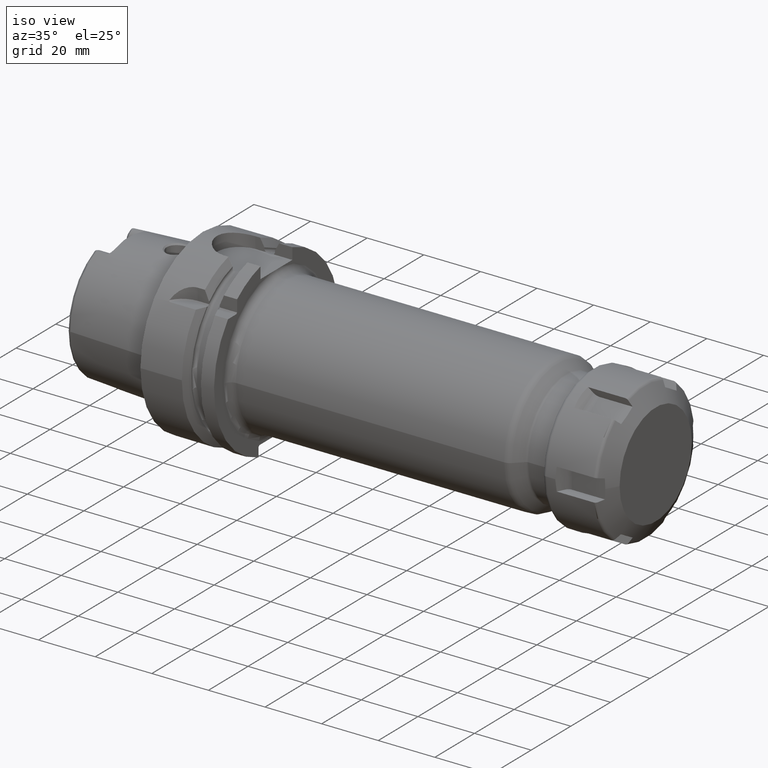
[diagram: clean part render]
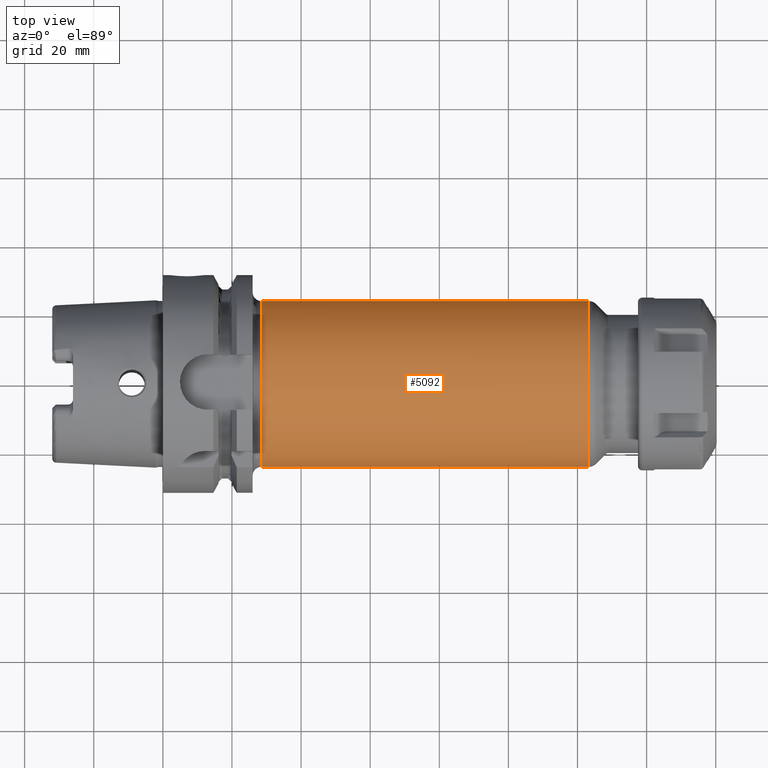
[diagram: tour spotlight — one face highlighted and labeled with its STEP entity id]
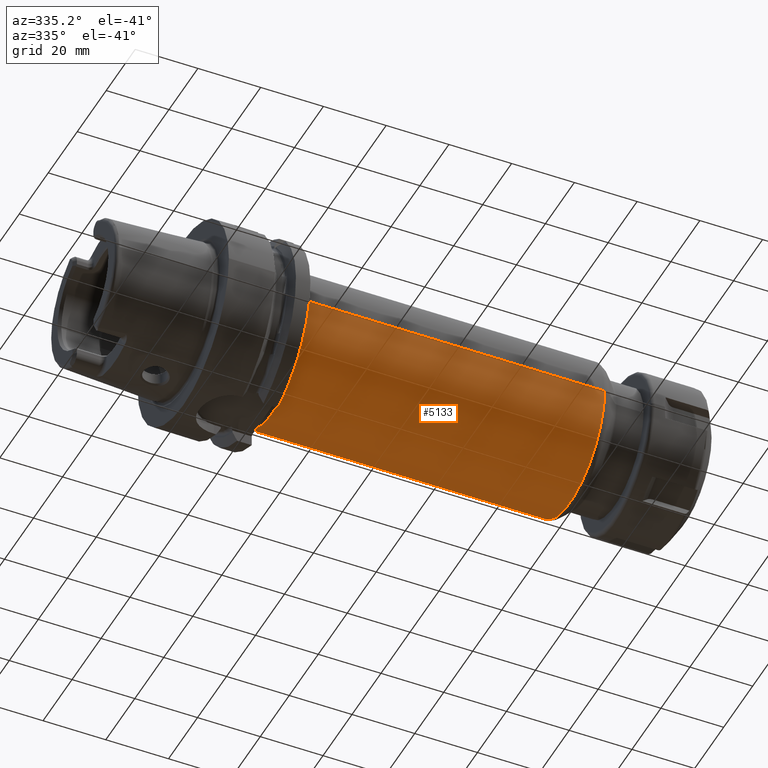
[diagram: tour spotlight — one face highlighted and labeled with its STEP entity id]
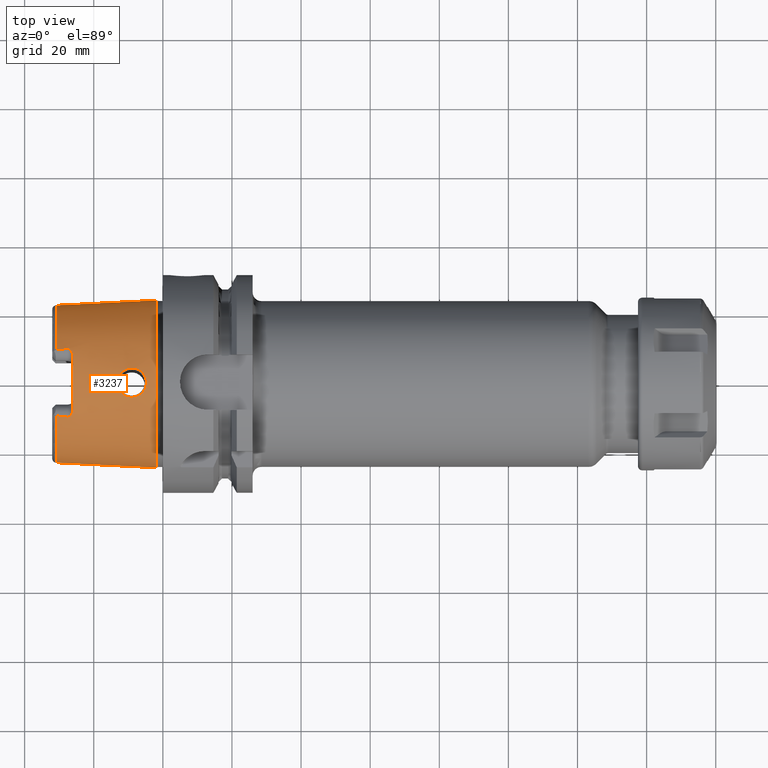
[diagram: tour spotlight — one face highlighted and labeled with its STEP entity id]
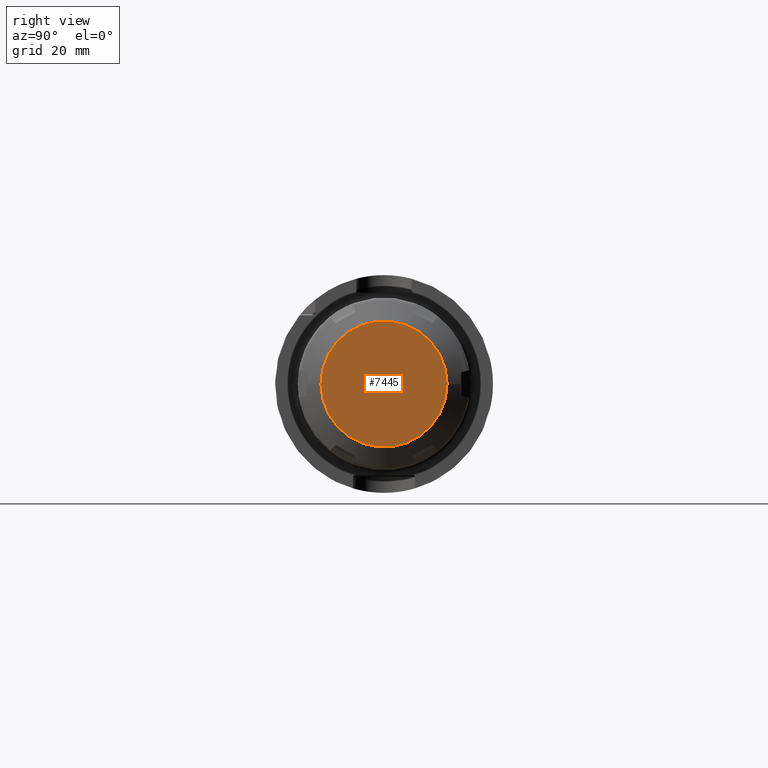
[diagram: tour spotlight — one face highlighted and labeled with its STEP entity id]
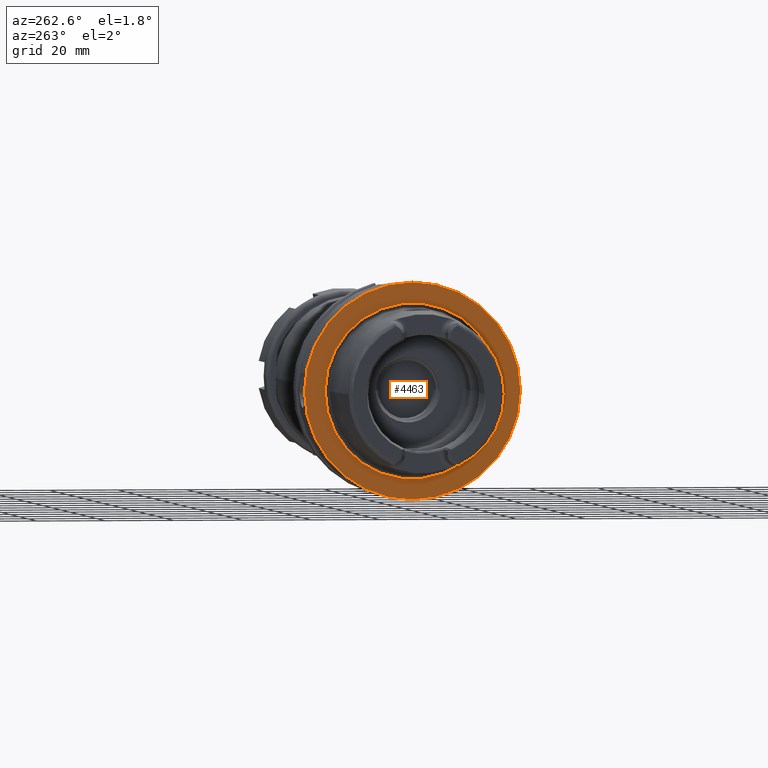
[diagram: tour spotlight — one face highlighted and labeled with its STEP entity id]
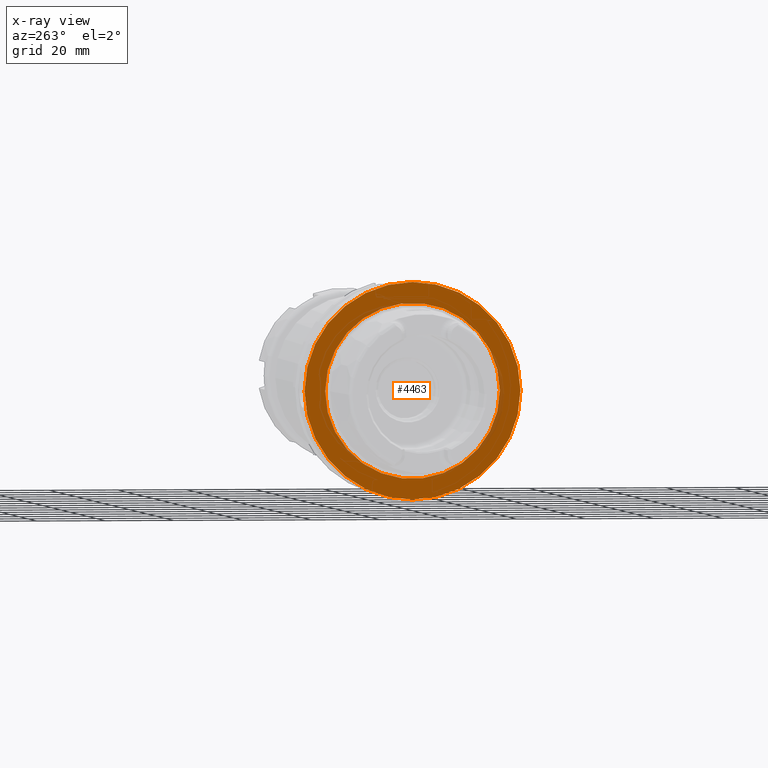
[diagram: x-ray of the same camera — body ghosted, this tour face saturated]
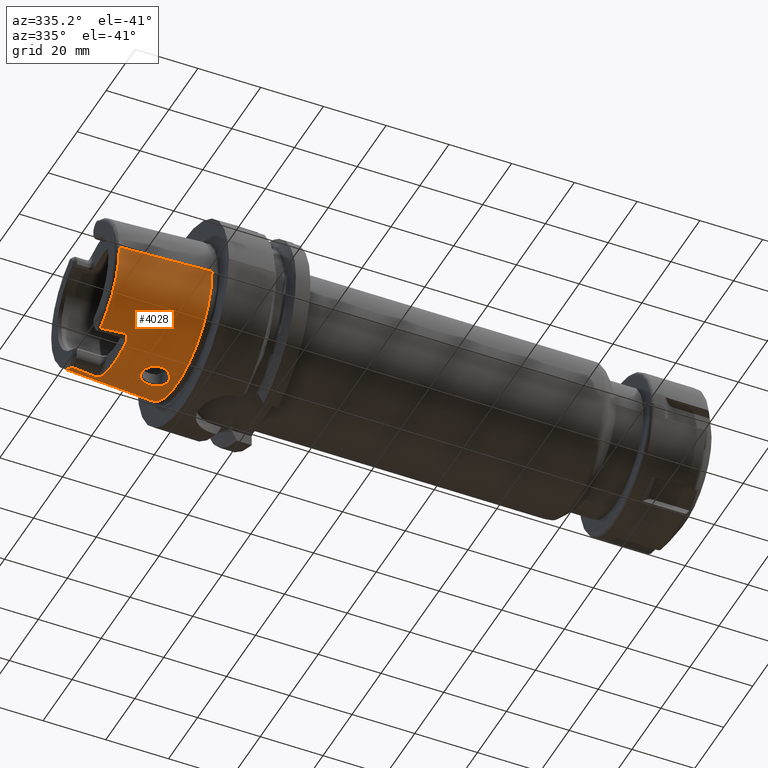
[diagram: tour spotlight — one face highlighted and labeled with its STEP entity id]
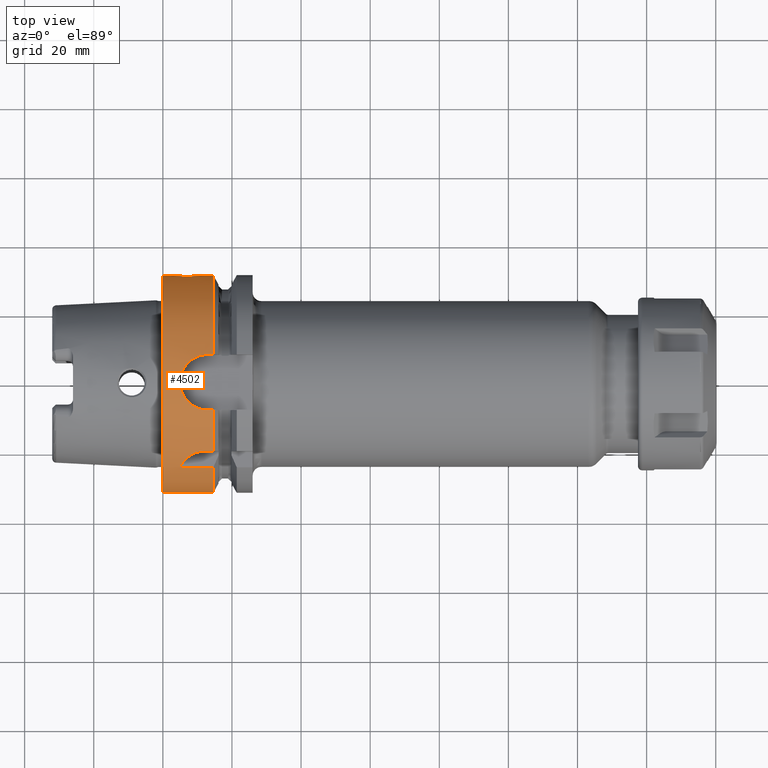
[diagram: tour spotlight — one face highlighted and labeled with its STEP entity id]
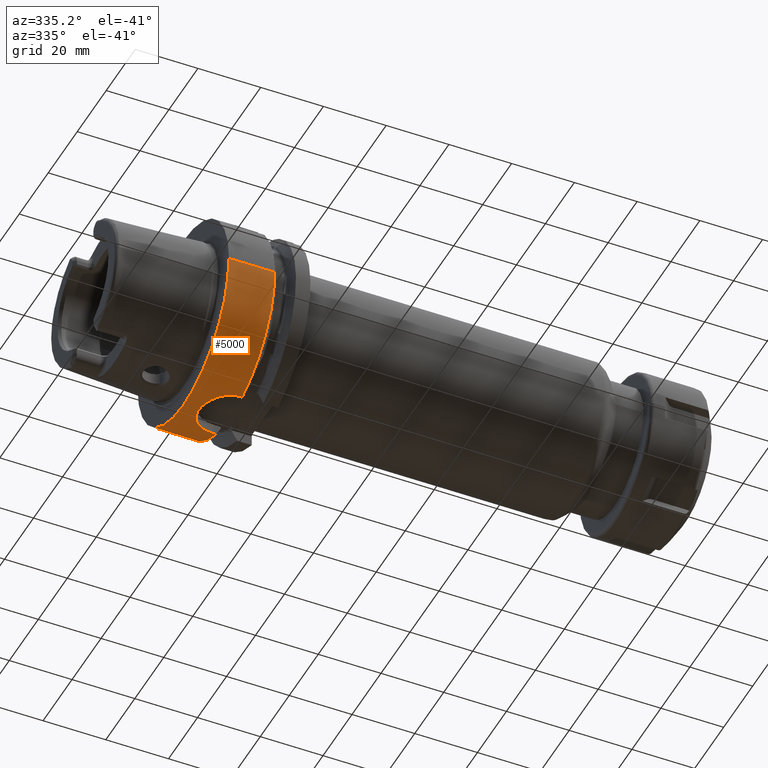
[diagram: tour spotlight — one face highlighted and labeled with its STEP entity id]
A machine part: a face-by-face anatomy tour. The part has 224 B-rep faces; the first image is the clean iso view, then the 8 largest visible faces are spotlighted one at a time (largest first), each with its STEP entity span.

Face 1 — top view, entity #5092. In plain terms, the highlighted cylindrical surface (partial cylindrical patch) has radius 24 mm, axis along (1, 0, 0).
Definition (entity closure, byte-faithful):
#1824=CARTESIAN_POINT('',(1.232573593129E2,0.E0,0.E0));
#1825=DIRECTION('',(-1.E0,0.E0,0.E0));
#1826=DIRECTION('',(0.E0,-1.E0,0.E0));
#1827=AXIS2_PLACEMENT_3D('',#1824,#1825,#1826);
#1829=CARTESIAN_POINT('',(2.85E1,0.E0,0.E0));
#1830=DIRECTION('',(1.E0,0.E0,0.E0));
#1831=DIRECTION('',(0.E0,6.629254613531E-7,9.999999999998E-1));
#1832=AXIS2_PLACEMENT_3D('',#1829,#1830,#1831);
#1834=CARTESIAN_POINT('',(2.85E1,0.E0,0.E0));
#1835=DIRECTION('',(1.E0,0.E0,0.E0));
#1836=DIRECTION('',(0.E0,1.E0,0.E0));
#1837=AXIS2_PLACEMENT_3D('',#1834,#1835,#1836);
#1854=DIRECTION('',(-1.E0,0.E0,1.253549700333E-14));
#1855=VECTOR('',#1854,9.475735931288E1);
#1856=CARTESIAN_POINT('',(1.232573593129E2,2.4E1,-1.250021735806E-13));
#1857=LINE('',#1856,#1855);
#1858=DIRECTION('',(-1.E0,0.E0,-1.813900661289E-14));
#1859=VECTOR('',#1858,9.475735931288E1);
#1860=CARTESIAN_POINT('',(1.232573593129E2,-2.4E1,1.242626298888E-13));
#1861=LINE('',#1860,#1859);
#3159=CARTESIAN_POINT('',(2.85E1,1.591021107247E-5,2.399999999999E1));
#3160=CARTESIAN_POINT('',(2.85E1,-2.4E1,0.E0));
#3161=VERTEX_POINT('',#3159);
#3162=VERTEX_POINT('',#3160);
#3165=CARTESIAN_POINT('',(2.85E1,2.4E1,0.E0));
#3166=VERTEX_POINT('',#3165);
#3179=CARTESIAN_POINT('',(1.232573593129E2,2.4E1,0.E0));
#3180=CARTESIAN_POINT('',(1.232573593129E2,-2.4E1,0.E0));
#3181=VERTEX_POINT('',#3179);
#3182=VERTEX_POINT('',#3180);
#5077=CARTESIAN_POINT('',(1.995E1,0.E0,0.E0));
#5078=DIRECTION('',(1.E0,0.E0,0.E0));
#5079=DIRECTION('',(0.E0,-1.E0,0.E0));
#5080=AXIS2_PLACEMENT_3D('',#5077,#5078,#5079);
#5081=CYLINDRICAL_SURFACE('',#5080,2.4E1);
#5083=ORIENTED_EDGE('',*,*,#5082,.F.);
#5085=ORIENTED_EDGE('',*,*,#5084,.T.);
#5086=ORIENTED_EDGE('',*,*,#5068,.F.);
#5087=ORIENTED_EDGE('',*,*,#4743,.F.);
#5089=ORIENTED_EDGE('',*,*,#5088,.F.);
#5090=EDGE_LOOP('',(#5083,#5085,#5086,#5087,#5089));
#5091=FACE_OUTER_BOUND('',#5090,.F.);
#5092=ADVANCED_FACE('',(#5091),#5081,.T.);
#1828=CIRCLE('',#1827,2.4E1);
#1833=CIRCLE('',#1832,2.4E1);
#1838=CIRCLE('',#1837,2.4E1);
#4743=EDGE_CURVE('',#3166,#3161,#1838,.T.);
#5068=EDGE_CURVE('',#3161,#3162,#1833,.T.);
#5082=EDGE_CURVE('',#3182,#3181,#1828,.T.);
#5084=EDGE_CURVE('',#3182,#3162,#1861,.T.);
#5088=EDGE_CURVE('',#3181,#3166,#1857,.T.);

Face 2 — auxiliary view, entity #5133. In plain terms, the highlighted cylindrical surface (partial cylindrical patch) has radius 24 mm, axis along (1, 0, 0).
Definition (entity closure, byte-faithful):
#1494=CARTESIAN_POINT('',(2.85E1,0.E0,0.E0));
#1495=DIRECTION('',(1.E0,0.E0,0.E0));
#1496=DIRECTION('',(0.E0,-1.E0,0.E0));
#1497=AXIS2_PLACEMENT_3D('',#1494,#1495,#1496);
#1849=CARTESIAN_POINT('',(1.232573593129E2,0.E0,0.E0));
#1850=DIRECTION('',(-1.E0,0.E0,0.E0));
#1851=DIRECTION('',(0.E0,1.E0,0.E0));
#1852=AXIS2_PLACEMENT_3D('',#1849,#1850,#1851);
#1854=DIRECTION('',(-1.E0,0.E0,1.253549700333E-14));
#1855=VECTOR('',#1854,9.475735931288E1);
#1856=CARTESIAN_POINT('',(1.232573593129E2,2.4E1,-1.250021735806E-13));
#1857=LINE('',#1856,#1855);
#1858=DIRECTION('',(-1.E0,0.E0,-1.813900661289E-14));
#1859=VECTOR('',#1858,9.475735931288E1);
#1860=CARTESIAN_POINT('',(1.232573593129E2,-2.4E1,1.242626298888E-13));
#1861=LINE('',#1860,#1859);
#3160=CARTESIAN_POINT('',(2.85E1,-2.4E1,0.E0));
#3162=VERTEX_POINT('',#3160);
#3165=CARTESIAN_POINT('',(2.85E1,2.4E1,0.E0));
#3166=VERTEX_POINT('',#3165);
#3179=CARTESIAN_POINT('',(1.232573593129E2,2.4E1,0.E0));
#3180=CARTESIAN_POINT('',(1.232573593129E2,-2.4E1,0.E0));
#3181=VERTEX_POINT('',#3179);
#3182=VERTEX_POINT('',#3180);
#5122=CARTESIAN_POINT('',(1.995E1,0.E0,0.E0));
#5123=DIRECTION('',(1.E0,0.E0,0.E0));
#5124=DIRECTION('',(0.E0,-1.E0,0.E0));
#5125=AXIS2_PLACEMENT_3D('',#5122,#5123,#5124);
#5126=CYLINDRICAL_SURFACE('',#5125,2.4E1);
#5127=ORIENTED_EDGE('',*,*,#5113,.F.);
#5128=ORIENTED_EDGE('',*,*,#5088,.T.);
#5129=ORIENTED_EDGE('',*,*,#4741,.F.);
#5130=ORIENTED_EDGE('',*,*,#5084,.F.);
#5131=EDGE_LOOP('',(#5127,#5128,#5129,#5130));
#5132=FACE_OUTER_BOUND('',#5131,.F.);
#5133=ADVANCED_FACE('',(#5132),#5126,.T.);
#1498=CIRCLE('',#1497,2.4E1);
#1853=CIRCLE('',#1852,2.4E1);
#4741=EDGE_CURVE('',#3162,#3166,#1498,.T.);
#5084=EDGE_CURVE('',#3182,#3162,#1861,.T.);
#5088=EDGE_CURVE('',#3181,#3166,#1857,.T.);
#5113=EDGE_CURVE('',#3181,#3182,#1853,.T.);

Face 3 — top view, entity #3237. In plain terms, the highlighted conical surface has half-angle 2.868 deg.
Definition (entity closure, byte-faithful):
#2=CARTESIAN_POINT('',(-3.086004306431E1,-9.562027931336E0,2.067E1));
#3=CARTESIAN_POINT('',(-3.049253157278E1,-9.605880711653E0,2.067E1));
#4=CARTESIAN_POINT('',(-2.975362396220E1,-9.693552821268E0,2.067E1));
#5=CARTESIAN_POINT('',(-2.863363692789E1,-9.824971306479E0,2.067E1));
#6=CARTESIAN_POINT('',(-2.787917629619E1,-9.912538799101E0,2.067E1));
#7=CARTESIAN_POINT('',(-2.75E1,-9.956312881929E0,2.067E1));
#9=CARTESIAN_POINT('',(-2.6E1,0.E0,0.E0));
#10=DIRECTION('',(1.E0,0.E0,0.E0));
#11=DIRECTION('',(0.E0,3.233021702202E-1,9.462957818415E-1));
#12=AXIS2_PLACEMENT_3D('',#9,#10,#11);
#14=CARTESIAN_POINT('',(-2.75E1,9.956312881929E0,2.067E1));
#15=CARTESIAN_POINT('',(-2.787916500946E1,9.912540102101E0,2.067E1));
#16=CARTESIAN_POINT('',(-2.863361059702E1,9.824974374327E0,2.067E1));
#17=CARTESIAN_POINT('',(-2.975359777716E1,9.693555915617E0,2.067E1));
#18=CARTESIAN_POINT('',(-3.049252035285E1,9.605882050456E0,2.067E1));
#19=CARTESIAN_POINT('',(-3.086004306431E1,9.562027931336E0,2.067E1));
#21=CARTESIAN_POINT('',(-2.E0,0.E0,0.E0));
#22=DIRECTION('',(1.E0,0.E0,0.E0));
#23=DIRECTION('',(0.E0,1.E0,0.E0));
#24=AXIS2_PLACEMENT_3D('',#21,#22,#23);
#26=CARTESIAN_POINT('',(-1.324941786023E1,-7.219004501044E-9,2.365679941218E1));
#27=CARTESIAN_POINT('',(-1.324962652857E1,2.128419836803E-1,2.365678895818E1));
#28=CARTESIAN_POINT('',(-1.321789572653E1,6.392154004916E-1,2.365279437370E1));
#29=CARTESIAN_POINT('',(-1.306583173353E1,1.295455377947E0,2.363353567605E1));
#30=CARTESIAN_POINT('',(-1.280774848226E1,1.924363159712E0,2.360322882883E1));
#31=CARTESIAN_POINT('',(-1.245682539685E1,2.498002640667E0,2.356658532007E1));
#32=CARTESIAN_POINT('',(-1.202590717647E1,3.003748276320E0,2.352875153285E1));
#33=CARTESIAN_POINT('',(-1.151587453193E1,3.440667161266E0,2.349418467003E1));
#34=CARTESIAN_POINT('',(-1.094488701051E1,3.790928519035E0,2.346872738592E1));
#35=CARTESIAN_POINT('',(-1.032606556195E1,4.047968073685E0,2.345686676513E1));
#36=CARTESIAN_POINT('',(-9.674487886290E0,4.205448144478E0,2.346208039452E1));
#37=CARTESIAN_POINT('',(-9.005382482159E0,4.259666064034E0,2.348629251751E1));
#38=CARTESIAN_POINT('',(-8.334406518885E0,4.208654245636E0,2.352972397238E1));
#39=CARTESIAN_POINT('',(-7.678583145358E0,4.052835118832E0,2.359064506703E1));
#40=CARTESIAN_POINT('',(-7.054746219975E0,3.795297178824E0,2.366546684138E1));
#41=CARTESIAN_POINT('',(-6.478384090661E0,3.441929617339E0,2.374909717224E1));
#42=CARTESIAN_POINT('',(-5.963720829785E0,2.998888105398E0,2.383556837714E1));
#43=CARTESIAN_POINT('',(-5.531697254110E0,2.487245477785E0,2.391660020727E1));
#44=CARTESIAN_POINT('',(-5.183622696567E0,1.910877761534E0,2.398748891792E1));
#45=CARTESIAN_POINT('',(-4.930520871648E0,1.285429316774E0,2.404215083473E1));
#46=CARTESIAN_POINT('',(-4.781592632661E0,6.352567731875E-1,2.407559904029E1));
#47=CARTESIAN_POINT('',(-4.750478792548E0,2.114683342023E-1,2.408258846670E1));
#48=CARTESIAN_POINT('',(-4.750585905229E0,7.197553449570E-9,2.408258310050E1));
#50=CARTESIAN_POINT('',(-4.750585905229E0,7.197553449570E-9,2.408258310050E1));
#51=CARTESIAN_POINT('',(-4.750395627959E0,-2.105069288240E-1,2.408259263313E1));
#52=CARTESIAN_POINT('',(-4.781309836194E0,-6.330630552620E-1,2.407566909301E1));
#53=CARTESIAN_POINT('',(-4.930068182376E0,-1.284334675678E0,2.404224817580E1));
#54=CARTESIAN_POINT('',(-5.183732271360E0,-1.911208248299E0,2.398746160179E1));
#55=CARTESIAN_POINT('',(-5.531554832014E0,-2.486758661206E0,2.391664059803E1));
#56=CARTESIAN_POINT('',(-5.960736101322E0,-2.995606004120E0,2.383611484308E1));
#57=CARTESIAN_POINT('',(-6.472413726219E0,-3.437431533938E0,2.375005151539E1));
#58=CARTESIAN_POINT('',(-7.047774921505E0,-3.791791568104E0,2.366638920783E1));
#59=CARTESIAN_POINT('',(-7.671990993959E0,-4.050736119112E0,2.359134441504E1));
#60=CARTESIAN_POINT('',(-8.327799970975E0,-4.207619640495E0,2.353024681340E1));
#61=CARTESIAN_POINT('',(-8.998662135271E0,-4.259680399888E0,2.348663216787E1));
#62=CARTESIAN_POINT('',(-9.668037445633E0,-4.206488328283E0,2.346222081393E1));
#63=CARTESIAN_POINT('',(-1.031990079178E1,-4.049961979503E0,2.345683302195E1));
#64=CARTESIAN_POINT('',(-1.093870323089E1,-3.794046262990E0,2.346853209808E1));
#65=CARTESIAN_POINT('',(-1.151051650685E1,-3.444658410973E0,2.349386945058E1));
#66=CARTESIAN_POINT('',(-1.202283712979E1,-3.007012911900E0,2.352850073603E1));
#67=CARTESIAN_POINT('',(-1.245609200384E1,-2.499248587590E0,2.356650362943E1));
#68=CARTESIAN_POINT('',(-1.280745559330E1,-1.924878595842E0,2.360319856514E1));
#69=CARTESIAN_POINT('',(-1.306526541006E1,-1.297000138509E0,2.363346880977E1));
#70=CARTESIAN_POINT('',(-1.321765204718E1,-6.412116938996E-1,2.365275767433E1));
#71=CARTESIAN_POINT('',(-1.324954460014E1,-2.136894906074E-1,2.365679306269E1));
#72=CARTESIAN_POINT('',(-1.324941786023E1,-7.219004501044E-9,2.365679941218E1));
#82=CARTESIAN_POINT('',(-2.651259296226E1,-9.27E0,2.104082891384E1));
#83=CARTESIAN_POINT('',(-2.655060528934E1,-9.340723960488E0,2.100758892059E1));
#84=CARTESIAN_POINT('',(-2.663038504623E1,-9.471838743333E0,2.094458948833E1));
#85=CARTESIAN_POINT('',(-2.676092291608E1,-9.637362323001E0,2.086163997968E1));
#86=CARTESIAN_POINT('',(-2.690131837165E1,-9.770899105642E0,2.079157611E1));
#87=CARTESIAN_POINT('',(-2.705226454993E1,-9.871852756963E0,2.073538687848E1));
#88=CARTESIAN_POINT('',(-2.720441776005E1,-9.934823835429E0,2.069678496112E1));
#89=CARTESIAN_POINT('',(-2.735189841416E1,-9.963277454574E0,2.067488149845E1));
#90=CARTESIAN_POINT('',(-2.745092740764E1,-9.961978077101E0,2.067E1));
#91=CARTESIAN_POINT('',(-2.75E1,-9.956312881929E0,2.067E1));
#93=CARTESIAN_POINT('',(-2.6E1,-7.441787718571E0,2.178189005860E1));
#94=CARTESIAN_POINT('',(-2.6E1,-7.574673232080E0,2.173648969253E1));
#95=CARTESIAN_POINT('',(-2.601813511197E1,-7.850865569829E0,2.163846841914E1));
#96=CARTESIAN_POINT('',(-2.610760114915E1,-8.297034966034E0,2.146679982993E1));
#97=CARTESIAN_POINT('',(-2.626559360892E1,-8.768529603152E0,2.127027062942E1));
#98=CARTESIAN_POINT('',(-2.642147165719E1,-9.100463955368E0,2.112051021193E1));
#99=CARTESIAN_POINT('',(-2.651259296226E1,-9.27E0,2.104082891384E1));
#185=CARTESIAN_POINT('',(-3.086004306431E1,0.E0,0.E0));
#186=DIRECTION('',(1.E0,0.E0,0.E0));
#187=DIRECTION('',(0.E0,1.E0,0.E0));
#188=AXIS2_PLACEMENT_3D('',#185,#186,#187);
#196=CARTESIAN_POINT('',(-3.086004306431E1,9.562027931336E0,2.067E1));
#261=CARTESIAN_POINT('',(-3.086004306431E1,0.E0,0.E0));
#262=DIRECTION('',(1.E0,0.E0,0.E0));
#263=DIRECTION('',(0.E0,-4.198553792210E-1,9.075910205259E-1));
#264=AXIS2_PLACEMENT_3D('',#261,#262,#263);
#457=CARTESIAN_POINT('',(-2.651259296226E1,9.27E0,2.104082891384E1));
#458=CARTESIAN_POINT('',(-2.642147038701E1,9.100461592138E0,2.112051132264E1));
#459=CARTESIAN_POINT('',(-2.626559126698E1,8.768524006326E0,2.127027307791E1));
#460=CARTESIAN_POINT('',(-2.610760038346E1,8.297031203136E0,2.146680127908E1));
#461=CARTESIAN_POINT('',(-2.601813556642E1,7.850867870131E0,2.163846753656E1));
#462=CARTESIAN_POINT('',(-2.6E1,7.574674433427E0,2.173648928209E1));
#463=CARTESIAN_POINT('',(-2.6E1,7.441787718571E0,2.178189005860E1));
#497=CARTESIAN_POINT('',(-2.75E1,9.956312881929E0,2.067E1));
#498=CARTESIAN_POINT('',(-2.745017853421E1,9.962064530943E0,2.067E1));
#499=CARTESIAN_POINT('',(-2.734992708669E1,9.963297705486E0,2.067498167063E1));
#500=CARTESIAN_POINT('',(-2.719976747307E1,9.933459927686E0,2.069769932459E1));
#501=CARTESIAN_POINT('',(-2.704939607884E1,9.870085988272E0,2.073638612523E1));
#502=CARTESIAN_POINT('',(-2.690048936387E1,9.770127639355E0,2.079198258623E1));
#503=CARTESIAN_POINT('',(-2.676049508867E1,9.636879759274E0,2.086188624037E1));
#504=CARTESIAN_POINT('',(-2.663016689843E1,9.471495400784E0,2.094475592633E1));
#505=CARTESIAN_POINT('',(-2.655053916050E1,9.340600924250E0,2.100764674716E1));
#506=CARTESIAN_POINT('',(-2.651259296226E1,9.27E0,2.104082891384E1));
#763=DIRECTION('',(-9.987474205320E-1,5.003588692862E-2,0.E0));
#764=VECTOR('',#763,2.889623789861E1);
#765=CARTESIAN_POINT('',(-2.E0,-2.422042414966E1,0.E0));
#766=LINE('',#765,#764);
#772=DIRECTION('',(-9.987474205320E-1,-5.003588692862E-2,0.E0));
#773=VECTOR('',#772,2.889623789861E1);
#774=CARTESIAN_POINT('',(-2.E0,2.422042414966E1,0.E0));
#775=LINE('',#774,#773);
#2727=CARTESIAN_POINT('',(-2.E0,2.422042414966E1,0.E0));
#2728=CARTESIAN_POINT('',(-2.E0,-2.422042414966E1,0.E0));
#2729=VERTEX_POINT('',#2727);
#2730=VERTEX_POINT('',#2728);
#2731=CARTESIAN_POINT('',(-3.086004306431E1,2.277457525750E1,0.E0));
#2732=VERTEX_POINT('',#2731);
#2733=CARTESIAN_POINT('',(-3.086004306431E1,-2.277457525750E1,0.E0));
#2734=VERTEX_POINT('',#2733);
#2772=VERTEX_POINT('',#196);
#2773=CARTESIAN_POINT('',(-3.086004306431E1,-9.562027931336E0,2.067E1));
#2774=VERTEX_POINT('',#2773);
#2784=CARTESIAN_POINT('',(-2.6E1,7.441787718571E0,2.178189005860E1));
#2785=VERTEX_POINT('',#2784);
#2788=CARTESIAN_POINT('',(-2.75E1,9.956312881929E0,2.067E1));
#2789=VERTEX_POINT('',#2788);
#2790=CARTESIAN_POINT('',(-2.6E1,-7.441787718571E0,2.178189005860E1));
#2791=VERTEX_POINT('',#2790);
#2794=CARTESIAN_POINT('',(-2.75E1,-9.956312881929E0,2.067E1));
#2795=VERTEX_POINT('',#2794);
#2796=VERTEX_POINT('',#506);
#2797=VERTEX_POINT('',#82);
#2938=VERTEX_POINT('',#26);
#2939=VERTEX_POINT('',#48);
#3200=CARTESIAN_POINT('',(-1.643002153216E1,0.E0,0.E0));
#3201=DIRECTION('',(1.E0,0.E0,0.E0));
#3202=DIRECTION('',(0.E0,-1.E0,0.E0));
#3203=AXIS2_PLACEMENT_3D('',#3200,#3201,#3202);
#3204=CONICAL_SURFACE('',#3203,2.349749970358E1,2.868042729042E0);
#3206=ORIENTED_EDGE('',*,*,#3205,.T.);
#3208=ORIENTED_EDGE('',*,*,#3207,.F.);
#3210=ORIENTED_EDGE('',*,*,#3209,.F.);
#3212=ORIENTED_EDGE('',*,*,#3211,.F.);
#3214=ORIENTED_EDGE('',*,*,#3213,.F.);
#3216=ORIENTED_EDGE('',*,*,#3215,.F.);
#3218=ORIENTED_EDGE('',*,*,#3217,.T.);
#3220=ORIENTED_EDGE('',*,*,#3219,.F.);
#3222=ORIENTED_EDGE('',*,*,#3221,.F.);
#3224=ORIENTED_EDGE('',*,*,#3223,.T.);
#3226=ORIENTED_EDGE('',*,*,#3225,.T.);
#3228=ORIENTED_EDGE('',*,*,#3227,.F.);
#3229=EDGE_LOOP('',(#3206,#3208,#3210,#3212,#3214,#3216,#3218,#3220,#3222,#3224,
#3226,#3228));
#3230=FACE_OUTER_BOUND('',#3229,.F.);
#3232=ORIENTED_EDGE('',*,*,#3231,.F.);
#3234=ORIENTED_EDGE('',*,*,#3233,.F.);
#3235=EDGE_LOOP('',(#3232,#3234));
#3236=FACE_BOUND('',#3235,.F.);
#3237=ADVANCED_FACE('',(#3230,#3236),#3204,.T.);
#8=B_SPLINE_CURVE_WITH_KNOTS('',3,(#2,#3,#4,#5,#6,#7),.UNSPECIFIED.,.F.,.F.,(4,
1,1,4),(0.E0,3.333333333333E-1,6.666666666667E-1,1.E0),.UNSPECIFIED.);
#13=CIRCLE('',#12,2.301805680272E1);
#20=B_SPLINE_CURVE_WITH_KNOTS('',3,(#14,#15,#16,#17,#18,#19),.UNSPECIFIED.,.F.,
.F.,(4,1,1,4),(0.E0,3.333333333333E-1,6.666666666667E-1,1.E0),.UNSPECIFIED.);
#25=CIRCLE('',#24,2.422042414966E1);
#49=B_SPLINE_CURVE_WITH_KNOTS('',3,(#26,#27,#28,#29,#30,#31,#32,#33,#34,#35,#36,
#37,#38,#39,#40,#41,#42,#43,#44,#45,#46,#47,#48),.UNSPECIFIED.,.F.,.F.,(4,1,1,1,
1,1,1,1,1,1,1,1,1,1,1,1,1,1,1,1,4),(0.E0,5.E-2,1.E-1,1.5E-1,2.E-1,2.5E-1,3.E-1,
3.5E-1,4.E-1,4.5E-1,5.E-1,5.5E-1,6.E-1,6.5E-1,7.E-1,7.5E-1,8.E-1,8.5E-1,9.E-1,
9.5E-1,1.E0),.UNSPECIFIED.);
#73=B_SPLINE_CURVE_WITH_KNOTS('',3,(#50,#51,#52,#53,#54,#55,#56,#57,#58,#59,#60,
#61,#62,#63,#64,#65,#66,#67,#68,#69,#70,#71,#72),.UNSPECIFIED.,.F.,.F.,(4,1,1,1,
1,1,1,1,1,1,1,1,1,1,1,1,1,1,1,1,4),(0.E0,5.E-2,1.E-1,1.5E-1,2.E-1,2.5E-1,3.E-1,
3.5E-1,4.E-1,4.5E-1,5.E-1,5.5E-1,6.E-1,6.5E-1,7.E-1,7.5E-1,8.E-1,8.5E-1,9.E-1,
9.5E-1,1.E0),.UNSPECIFIED.);
#92=B_SPLINE_CURVE_WITH_KNOTS('',3,(#82,#83,#84,#85,#86,#87,#88,#89,#90,#91),
.UNSPECIFIED.,.F.,.F.,(4,1,1,1,1,1,1,4),(0.E0,1.428571428571E-1,
2.857142857143E-1,4.285714285714E-1,5.714285714286E-1,7.142857142857E-1,
8.571428571429E-1,1.E0),.UNSPECIFIED.);
#100=B_SPLINE_CURVE_WITH_KNOTS('',3,(#93,#94,#95,#96,#97,#98,#99),.UNSPECIFIED.,
.F.,.F.,(4,1,1,1,4),(0.E0,2.5E-1,5.E-1,7.5E-1,1.E0),.UNSPECIFIED.);
#189=CIRCLE('',#188,2.277457525750E1);
#265=CIRCLE('',#264,2.277457525750E1);
#464=B_SPLINE_CURVE_WITH_KNOTS('',3,(#457,#458,#459,#460,#461,#462,#463),
.UNSPECIFIED.,.F.,.F.,(4,1,1,1,4),(0.E0,2.5E-1,5.E-1,7.5E-1,1.E0),
.UNSPECIFIED.);
#507=B_SPLINE_CURVE_WITH_KNOTS('',3,(#497,#498,#499,#500,#501,#502,#503,#504,
#505,#506),.UNSPECIFIED.,.F.,.F.,(4,1,1,1,1,1,1,4),(0.E0,1.428571428571E-1,
2.857142857143E-1,4.285714285714E-1,5.714285714286E-1,7.142857142857E-1,
8.571428571429E-1,1.E0),.UNSPECIFIED.);
#3205=EDGE_CURVE('',#2774,#2795,#8,.T.);
#3207=EDGE_CURVE('',#2797,#2795,#92,.T.);
#3209=EDGE_CURVE('',#2791,#2797,#100,.T.);
#3211=EDGE_CURVE('',#2785,#2791,#13,.T.);
#3213=EDGE_CURVE('',#2796,#2785,#464,.T.);
#3215=EDGE_CURVE('',#2789,#2796,#507,.T.);
#3217=EDGE_CURVE('',#2789,#2772,#20,.T.);
#3219=EDGE_CURVE('',#2732,#2772,#189,.T.);
#3221=EDGE_CURVE('',#2729,#2732,#775,.T.);
#3223=EDGE_CURVE('',#2729,#2730,#25,.T.);
#3225=EDGE_CURVE('',#2730,#2734,#766,.T.);
#3227=EDGE_CURVE('',#2774,#2734,#265,.T.);
#3231=EDGE_CURVE('',#2938,#2939,#49,.T.);
#3233=EDGE_CURVE('',#2939,#2938,#73,.T.);

Face 4 — right view, entity #7445. In plain terms, the highlighted planar face has unit normal (1, 0, 0).
Definition (entity closure, byte-faithful):
#6695=CARTESIAN_POINT('',(2.25E1,0.E0,0.E0));
#6696=DIRECTION('',(-1.E0,0.E0,0.E0));
#6697=DIRECTION('',(0.E0,1.E0,0.E0));
#6698=AXIS2_PLACEMENT_3D('',#6695,#6696,#6697);
#7063=CARTESIAN_POINT('',(2.25E1,0.E0,0.E0));
#7064=DIRECTION('',(1.E0,0.E0,0.E0));
#7065=DIRECTION('',(0.E0,1.E0,0.E0));
#7066=AXIS2_PLACEMENT_3D('',#7063,#7064,#7065);
#7326=CARTESIAN_POINT('',(2.25E1,1.825E1,0.E0));
#7327=CARTESIAN_POINT('',(2.25E1,-1.825E1,0.E0));
#7328=VERTEX_POINT('',#7326);
#7329=VERTEX_POINT('',#7327);
#7434=CARTESIAN_POINT('',(2.25E1,0.E0,0.E0));
#7435=DIRECTION('',(1.E0,0.E0,0.E0));
#7436=DIRECTION('',(0.E0,-1.E0,0.E0));
#7437=AXIS2_PLACEMENT_3D('',#7434,#7435,#7436);
#7438=PLANE('',#7437);
#7440=ORIENTED_EDGE('',*,*,#7439,.T.);
#7442=ORIENTED_EDGE('',*,*,#7441,.F.);
#7443=EDGE_LOOP('',(#7440,#7442));
#7444=FACE_OUTER_BOUND('',#7443,.F.);
#7445=ADVANCED_FACE('',(#7444),#7438,.T.);
#6699=CIRCLE('',#6698,1.825E1);
#7067=CIRCLE('',#7066,1.825E1);
#7439=EDGE_CURVE('',#7328,#7329,#6699,.T.);
#7441=EDGE_CURVE('',#7328,#7329,#7067,.T.);

Face 5 — auxiliary view, entity #4463. An x-ray twin of the same camera follows (body ghosted, this face saturated) — the face is partly hidden behind the body. In plain terms, the highlighted planar face has unit normal (1, 0, 0).
Definition (entity closure, byte-faithful):
#1068=CARTESIAN_POINT('',(-1.421085471520E-14,0.E0,0.E0));
#1069=DIRECTION('',(1.E0,0.E0,0.E0));
#1070=DIRECTION('',(0.E0,1.E0,0.E0));
#1071=AXIS2_PLACEMENT_3D('',#1068,#1069,#1070);
#1073=CARTESIAN_POINT('',(-1.421085471520E-14,0.E0,0.E0));
#1074=DIRECTION('',(-1.E0,0.E0,0.E0));
#1075=DIRECTION('',(0.E0,1.E0,0.E0));
#1076=AXIS2_PLACEMENT_3D('',#1073,#1074,#1075);
#1078=CARTESIAN_POINT('',(0.E0,0.E0,0.E0));
#1079=DIRECTION('',(-1.E0,0.E0,0.E0));
#1080=DIRECTION('',(0.E0,-1.E0,0.E0));
#1081=AXIS2_PLACEMENT_3D('',#1078,#1079,#1080);
#1083=CARTESIAN_POINT('',(0.E0,0.E0,0.E0));
#1084=DIRECTION('',(-1.E0,0.E0,0.E0));
#1085=DIRECTION('',(0.E0,1.E0,0.E0));
#1086=AXIS2_PLACEMENT_3D('',#1083,#1084,#1085);
#2707=CARTESIAN_POINT('',(-1.421085471520E-14,3.15E1,0.E0));
#2708=CARTESIAN_POINT('',(-1.421085471520E-14,-3.15E1,0.E0));
#2709=VERTEX_POINT('',#2707);
#2710=VERTEX_POINT('',#2708);
#2735=CARTESIAN_POINT('',(0.E0,-2.549042414966E1,0.E0));
#2736=VERTEX_POINT('',#2735);
#2737=CARTESIAN_POINT('',(0.E0,2.549042414966E1,0.E0));
#2738=VERTEX_POINT('',#2737);
#4448=CARTESIAN_POINT('',(0.E0,0.E0,0.E0));
#4449=DIRECTION('',(1.E0,0.E0,0.E0));
#4450=DIRECTION('',(0.E0,-1.E0,0.E0));
#4451=AXIS2_PLACEMENT_3D('',#4448,#4449,#4450);
#4452=PLANE('',#4451);
#4454=ORIENTED_EDGE('',*,*,#4453,.T.);
#4456=ORIENTED_EDGE('',*,*,#4455,.F.);
#4457=EDGE_LOOP('',(#4454,#4456));
#4458=FACE_OUTER_BOUND('',#4457,.F.);
#4459=ORIENTED_EDGE('',*,*,#4443,.T.);
#4460=ORIENTED_EDGE('',*,*,#4427,.T.);
#4461=EDGE_LOOP('',(#4459,#4460));
#4462=FACE_BOUND('',#4461,.F.);
#4463=ADVANCED_FACE('',(#4458,#4462),#4452,.F.);
#1072=CIRCLE('',#1071,3.15E1);
#1077=CIRCLE('',#1076,3.15E1);
#1082=CIRCLE('',#1081,2.549042414966E1);
#1087=CIRCLE('',#1086,2.549042414966E1);
#4427=EDGE_CURVE('',#2738,#2736,#1087,.T.);
#4443=EDGE_CURVE('',#2736,#2738,#1082,.T.);
#4453=EDGE_CURVE('',#2709,#2710,#1072,.T.);
#4455=EDGE_CURVE('',#2709,#2710,#1077,.T.);

Face 6 — auxiliary view, entity #4028. In plain terms, the highlighted conical surface has half-angle 2.868 deg.
Definition (entity closure, byte-faithful):
#172=CARTESIAN_POINT('',(-3.086004306431E1,9.562027931336E0,-2.067E1));
#180=CARTESIAN_POINT('',(-3.086004306431E1,0.E0,0.E0));
#181=DIRECTION('',(-1.E0,0.E0,0.E0));
#182=DIRECTION('',(0.E0,1.E0,0.E0));
#183=AXIS2_PLACEMENT_3D('',#180,#181,#182);
#266=CARTESIAN_POINT('',(-3.086004306431E1,0.E0,0.E0));
#267=DIRECTION('',(-1.E0,0.E0,0.E0));
#268=DIRECTION('',(0.E0,-4.198553792210E-1,-9.075910205259E-1));
#269=AXIS2_PLACEMENT_3D('',#266,#267,#268);
#715=CARTESIAN_POINT('',(-2.35E1,-1.040978349090E1,-2.067E1));
#716=CARTESIAN_POINT('',(-2.344355022851E1,-1.041607090076E1,-2.067E1));
#717=CARTESIAN_POINT('',(-2.332956993861E1,-1.041630964332E1,
-2.067627649687E1));
#718=CARTESIAN_POINT('',(-2.315431779142E1,-1.037517685704E1,
-2.070680447798E1));
#719=CARTESIAN_POINT('',(-2.298610382819E1,-1.029332142770E1,
-2.075709446100E1));
#720=CARTESIAN_POINT('',(-2.282168004898E1,-1.016791062235E1,
-2.082809580409E1));
#721=CARTESIAN_POINT('',(-2.266724538325E1,-9.999284585470E0,
-2.091827708343E1));
#722=CARTESIAN_POINT('',(-2.252949651780E1,-9.795860386621E0,
-2.102205159226E1));
#723=CARTESIAN_POINT('',(-2.240609239614E1,-9.556317791147E0,
-2.113897791639E1));
#724=CARTESIAN_POINT('',(-2.233295118151E1,-9.369771312934E0,
-2.122596447282E1));
#725=CARTESIAN_POINT('',(-2.229902715702E1,-9.27E0,-2.127129858661E1));
#732=CARTESIAN_POINT('',(-2.229902715702E1,-9.27E0,-2.127129858661E1));
#733=CARTESIAN_POINT('',(-2.223399395074E1,-9.078735889296E0,
-2.135820522042E1));
#734=CARTESIAN_POINT('',(-2.212138063131E1,-8.709703982970E0,
-2.151897497246E1));
#735=CARTESIAN_POINT('',(-2.202143095510E1,-8.195867731278E0,
-2.172483116732E1));
#736=CARTESIAN_POINT('',(-2.2E1,-7.876905772307E0,-2.184209600703E1));
#737=CARTESIAN_POINT('',(-2.2E1,-7.723914364163E0,-2.189606426911E1));
#744=CARTESIAN_POINT('',(-3.086004306431E1,9.562027931336E0,-2.067E1));
#745=CARTESIAN_POINT('',(-3.006933576531E1,9.656377942908E0,-2.067E1));
#746=CARTESIAN_POINT('',(-2.846987211493E1,9.844931102331E0,-2.067E1));
#747=CARTESIAN_POINT('',(-2.601704943476E1,1.012739619931E1,-2.067E1));
#748=CARTESIAN_POINT('',(-2.434508424921E1,1.031565749353E1,-2.067E1));
#749=CARTESIAN_POINT('',(-2.35E1,1.040978349090E1,-2.067E1));
#751=CARTESIAN_POINT('',(-2.2E1,0.E0,0.E0));
#752=DIRECTION('',(1.E0,0.E0,0.E0));
#753=DIRECTION('',(0.E0,-3.326627708379E-1,-9.430458530201E-1));
#754=AXIS2_PLACEMENT_3D('',#751,#752,#753);
#756=CARTESIAN_POINT('',(-2.35E1,-1.040978349090E1,-2.067E1));
#757=CARTESIAN_POINT('',(-2.434499363207E1,-1.031566758652E1,-2.067E1));
#758=CARTESIAN_POINT('',(-2.601683809497E1,-1.012742018211E1,-2.067E1));
#759=CARTESIAN_POINT('',(-2.846966522954E1,-9.844955281726E0,-2.067E1));
#760=CARTESIAN_POINT('',(-3.006924714753E1,-9.656388517097E0,-2.067E1));
#761=CARTESIAN_POINT('',(-3.086004306431E1,-9.562027931336E0,-2.067E1));
#763=DIRECTION('',(-9.987474205320E-1,5.003588692862E-2,0.E0));
#764=VECTOR('',#763,2.889623789861E1);
#765=CARTESIAN_POINT('',(-2.E0,-2.422042414966E1,0.E0));
#766=LINE('',#765,#764);
#767=CARTESIAN_POINT('',(-2.E0,0.E0,0.E0));
#768=DIRECTION('',(1.E0,0.E0,0.E0));
#769=DIRECTION('',(0.E0,-1.E0,0.E0));
#770=AXIS2_PLACEMENT_3D('',#767,#768,#769);
#772=DIRECTION('',(-9.987474205320E-1,-5.003588692862E-2,0.E0));
#773=VECTOR('',#772,2.889623789861E1);
#774=CARTESIAN_POINT('',(-2.E0,2.422042414966E1,0.E0));
#775=LINE('',#774,#773);
#776=CARTESIAN_POINT('',(-4.750586214018E0,5.673461659763E-9,
-2.408258339423E1));
#777=CARTESIAN_POINT('',(-4.750477437961E0,2.111411076152E-1,
-2.408258884376E1));
#778=CARTESIAN_POINT('',(-4.781495656806E0,6.343409338442E-1,
-2.407562144168E1));
#779=CARTESIAN_POINT('',(-4.930078657106E0,1.283914855647E0,-2.404224907910E1));
#780=CARTESIAN_POINT('',(-5.182634392381E0,1.908800454949E0,-2.398769888200E1));
#781=CARTESIAN_POINT('',(-5.529831450162E0,2.484539069761E0,-2.391697022480E1));
#782=CARTESIAN_POINT('',(-5.960551469368E0,2.995586150016E0,-2.383614077825E1));
#783=CARTESIAN_POINT('',(-6.473793439058E0,3.438507792172E0,-2.374982588457E1));
#784=CARTESIAN_POINT('',(-7.048787066123E0,3.792204015972E0,-2.366626747645E1));
#785=CARTESIAN_POINT('',(-7.671452269175E0,4.050490920343E0,-2.359141310307E1));
#786=CARTESIAN_POINT('',(-8.326498075054E0,4.207389863949E0,-2.353035449331E1));
#787=CARTESIAN_POINT('',(-8.996688113385E0,4.259622037115E0,-2.348674331493E1));
#788=CARTESIAN_POINT('',(-9.664449704733E0,4.206963769363E0,-2.346231724919E1));
#789=CARTESIAN_POINT('',(-1.031524077611E1,4.051442761029E0,-2.345681057565E1));
#790=CARTESIAN_POINT('',(-1.093485325951E1,3.796098039719E0,-2.346839797168E1));
#791=CARTESIAN_POINT('',(-1.150677686976E1,3.447081430360E0,-2.349368587605E1));
#792=CARTESIAN_POINT('',(-1.201610511114E1,3.013688514077E0,-2.352797212386E1));
#793=CARTESIAN_POINT('',(-1.245275273991E1,2.504280742997E0,-2.356616658718E1));
#794=CARTESIAN_POINT('',(-1.280634613041E1,1.927107192660E0,-2.360307496745E1));
#795=CARTESIAN_POINT('',(-1.306351718265E1,1.301776136825E0,-2.363325793045E1));
#796=CARTESIAN_POINT('',(-1.321667495617E1,6.483699009348E-1,
-2.365261938940E1));
#797=CARTESIAN_POINT('',(-1.324953338827E1,2.167159282651E-1,
-2.365680321669E1));
#798=CARTESIAN_POINT('',(-1.324940828071E1,6.149879737228E-9,
-2.365680948441E1));
#800=CARTESIAN_POINT('',(-1.324940828071E1,6.149879737228E-9,
-2.365680948441E1));
#801=CARTESIAN_POINT('',(-1.324953102801E1,-2.137481481882E-1,
-2.365680333493E1));
#802=CARTESIAN_POINT('',(-1.321763433537E1,-6.412975014817E-1,
-2.365274945467E1));
#803=CARTESIAN_POINT('',(-1.306535183772E1,-1.296633810944E0,
-2.363348136753E1));
#804=CARTESIAN_POINT('',(-1.280777805154E1,-1.924231879999E0,
-2.360323471178E1));
#805=CARTESIAN_POINT('',(-1.245640925213E1,-2.498853587660E0,
-2.356653312143E1));
#806=CARTESIAN_POINT('',(-1.202279775894E1,-3.007095564138E0,
-2.352849478770E1));
#807=CARTESIAN_POINT('',(-1.151012912941E1,-3.444950000041E0,
-2.349384632376E1));
#808=CARTESIAN_POINT('',(-1.093833543731E1,-3.794219313343E0,
-2.346852201482E1));
#809=CARTESIAN_POINT('',(-1.031975853695E1,-4.049996047184E0,
-2.345683414568E1));
#810=CARTESIAN_POINT('',(-9.668027880621E0,-4.206485188960E0,
-2.346222186835E1));
#811=CARTESIAN_POINT('',(-8.998732245580E0,-4.259676561364E0,
-2.348662929012E1));
#812=CARTESIAN_POINT('',(-8.327946517995E0,-4.207637743620E0,
-2.353023608986E1));
#813=CARTESIAN_POINT('',(-7.672280726344E0,-4.050816496641E0,
-2.359131552533E1));
#814=CARTESIAN_POINT('',(-7.048298445734E0,-3.792045808672E0,
-2.366632099982E1));
#815=CARTESIAN_POINT('',(-6.472887987830E0,-3.437795786313E0,
-2.374997505426E1));
#816=CARTESIAN_POINT('',(-5.960766318899E0,-2.995689730409E0,
-2.383610614678E1));
#817=CARTESIAN_POINT('',(-5.531187494687E0,-2.486290041474E0,
-2.391671147691E1));
#818=CARTESIAN_POINT('',(-5.183401261358E0,-1.910526594455E0,
-2.398753185570E1));
#819=CARTESIAN_POINT('',(-4.929997199649E0,-1.284003067748E0,
-2.404226458263E1));
#820=CARTESIAN_POINT('',(-4.781340780308E0,-6.332209723674E-1,
-2.407566103624E1));
#821=CARTESIAN_POINT('',(-4.750402434471E0,-2.105981632370E-1,
-2.408259260134E1));
#822=CARTESIAN_POINT('',(-4.750586214018E0,5.673461659763E-9,
-2.408258339423E1));
#832=CARTESIAN_POINT('',(-2.229902715702E1,9.27E0,-2.127129858661E1));
#833=CARTESIAN_POINT('',(-2.233311157770E1,9.370243041714E0,-2.122575012858E1));
#834=CARTESIAN_POINT('',(-2.240658425841E1,9.557497215840E0,-2.113842140416E1));
#835=CARTESIAN_POINT('',(-2.253041527230E1,9.797438074146E0,-2.102126542838E1));
#836=CARTESIAN_POINT('',(-2.266830373788E1,1.000064778809E1,-2.091756656395E1));
#837=CARTESIAN_POINT('',(-2.282373330426E1,1.017005110462E1,-2.082694270310E1));
#838=CARTESIAN_POINT('',(-2.299261366970E1,1.029790438197E1,-2.075446014923E1));
#839=CARTESIAN_POINT('',(-2.316533457542E1,1.037882348161E1,-2.070435505978E1));
#840=CARTESIAN_POINT('',(-2.333269177476E1,1.041609135758E1,-2.067621009348E1));
#841=CARTESIAN_POINT('',(-2.344467268621E1,1.041594588074E1,-2.067E1));
#842=CARTESIAN_POINT('',(-2.35E1,1.040978349090E1,-2.067E1));
#844=CARTESIAN_POINT('',(-2.2E1,7.723914364163E0,-2.189606426911E1));
#845=CARTESIAN_POINT('',(-2.2E1,7.876901135824E0,-2.184209764257E1));
#846=CARTESIAN_POINT('',(-2.202143124879E1,8.195856320393E0,-2.172483505793E1));
#847=CARTESIAN_POINT('',(-2.212136508173E1,8.709641843939E0,-2.151900085185E1));
#848=CARTESIAN_POINT('',(-2.223398514363E1,9.078709987396E0,-2.135821698973E1));
#849=CARTESIAN_POINT('',(-2.229902715702E1,9.27E0,-2.127129858661E1));
#2727=CARTESIAN_POINT('',(-2.E0,2.422042414966E1,0.E0));
#2728=CARTESIAN_POINT('',(-2.E0,-2.422042414966E1,0.E0));
#2729=VERTEX_POINT('',#2727);
#2730=VERTEX_POINT('',#2728);
#2731=CARTESIAN_POINT('',(-3.086004306431E1,2.277457525750E1,0.E0));
#2732=VERTEX_POINT('',#2731);
#2733=CARTESIAN_POINT('',(-3.086004306431E1,-2.277457525750E1,0.E0));
#2734=VERTEX_POINT('',#2733);
#2852=VERTEX_POINT('',#172);
#2854=CARTESIAN_POINT('',(-3.086004306431E1,-9.562027931336E0,-2.067E1));
#2855=VERTEX_POINT('',#2854);
#2858=CARTESIAN_POINT('',(-2.229902715702E1,-9.27E0,-2.127129858661E1));
#2860=VERTEX_POINT('',#2858);
#2861=VERTEX_POINT('',#737);
#2862=VERTEX_POINT('',#844);
#2863=VERTEX_POINT('',#849);
#2874=CARTESIAN_POINT('',(-2.35E1,-1.040978349090E1,-2.067E1));
#2875=VERTEX_POINT('',#2874);
#2876=CARTESIAN_POINT('',(-2.35E1,1.040978349090E1,-2.067E1));
#2877=VERTEX_POINT('',#2876);
#2942=VERTEX_POINT('',#776);
#2943=VERTEX_POINT('',#798);
#3998=CARTESIAN_POINT('',(-1.643002153216E1,0.E0,0.E0));
#3999=DIRECTION('',(1.E0,0.E0,0.E0));
#4000=DIRECTION('',(0.E0,-1.E0,0.E0));
#4001=AXIS2_PLACEMENT_3D('',#3998,#3999,#4000);
#4002=CONICAL_SURFACE('',#4001,2.349749970358E1,2.868042729042E0);
#4004=ORIENTED_EDGE('',*,*,#4003,.T.);
#4006=ORIENTED_EDGE('',*,*,#4005,.F.);
#4008=ORIENTED_EDGE('',*,*,#4007,.F.);
#4010=ORIENTED_EDGE('',*,*,#4009,.F.);
#4011=ORIENTED_EDGE('',*,*,#3988,.F.);
#4012=ORIENTED_EDGE('',*,*,#3977,.F.);
#4013=ORIENTED_EDGE('',*,*,#3964,.T.);
#4014=ORIENTED_EDGE('',*,*,#3367,.T.);
#4015=ORIENTED_EDGE('',*,*,#3225,.F.);
#4017=ORIENTED_EDGE('',*,*,#4016,.T.);
#4018=ORIENTED_EDGE('',*,*,#3221,.T.);
#4019=ORIENTED_EDGE('',*,*,#3339,.T.);
#4020=EDGE_LOOP('',(#4004,#4006,#4008,#4010,#4011,#4012,#4013,#4014,#4015,#4017,
#4018,#4019));
#4021=FACE_OUTER_BOUND('',#4020,.F.);
#4023=ORIENTED_EDGE('',*,*,#4022,.F.);
#4025=ORIENTED_EDGE('',*,*,#4024,.F.);
#4026=EDGE_LOOP('',(#4023,#4025));
#4027=FACE_BOUND('',#4026,.F.);
#4028=ADVANCED_FACE('',(#4021,#4027),#4002,.T.);
#184=CIRCLE('',#183,2.277457525750E1);
#270=CIRCLE('',#269,2.277457525750E1);
#726=B_SPLINE_CURVE_WITH_KNOTS('',3,(#715,#716,#717,#718,#719,#720,#721,#722,
#723,#724,#725),.UNSPECIFIED.,.F.,.F.,(4,1,1,1,1,1,1,1,4),(0.E0,1.25E-1,2.5E-1,
3.75E-1,5.E-1,6.25E-1,7.5E-1,8.75E-1,1.E0),.UNSPECIFIED.);
#738=B_SPLINE_CURVE_WITH_KNOTS('',3,(#732,#733,#734,#735,#736,#737),
.UNSPECIFIED.,.F.,.F.,(4,1,1,4),(0.E0,3.333333333333E-1,6.666666666667E-1,1.E0),
.UNSPECIFIED.);
#750=B_SPLINE_CURVE_WITH_KNOTS('',3,(#744,#745,#746,#747,#748,#749),
.UNSPECIFIED.,.F.,.F.,(4,1,1,4),(0.E0,3.333333333333E-1,6.666666666667E-1,1.E0),
.UNSPECIFIED.);
#755=CIRCLE('',#754,2.321845136054E1);
#762=B_SPLINE_CURVE_WITH_KNOTS('',3,(#756,#757,#758,#759,#760,#761),
.UNSPECIFIED.,.F.,.F.,(4,1,1,4),(0.E0,3.333333333333E-1,6.666666666667E-1,1.E0),
.UNSPECIFIED.);
#771=CIRCLE('',#770,2.422042414966E1);
#799=B_SPLINE_CURVE_WITH_KNOTS('',3,(#776,#777,#778,#779,#780,#781,#782,#783,
#784,#785,#786,#787,#788,#789,#790,#791,#792,#793,#794,#795,#796,#797,#798),
.UNSPECIFIED.,.F.,.F.,(4,1,1,1,1,1,1,1,1,1,1,1,1,1,1,1,1,1,1,1,4),(0.E0,5.E-2,
1.E-1,1.5E-1,2.E-1,2.5E-1,3.E-1,3.5E-1,4.E-1,4.5E-1,5.E-1,5.5E-1,6.E-1,6.5E-1,
7.E-1,7.5E-1,8.E-1,8.5E-1,9.E-1,9.5E-1,1.E0),.UNSPECIFIED.);
#823=B_SPLINE_CURVE_WITH_KNOTS('',3,(#800,#801,#802,#803,#804,#805,#806,#807,
#808,#809,#810,#811,#812,#813,#814,#815,#816,#817,#818,#819,#820,#821,#822),
.UNSPECIFIED.,.F.,.F.,(4,1,1,1,1,1,1,1,1,1,1,1,1,1,1,1,1,1,1,1,4),(0.E0,5.E-2,
1.E-1,1.5E-1,2.E-1,2.5E-1,3.E-1,3.5E-1,4.E-1,4.5E-1,5.E-1,5.5E-1,6.E-1,6.5E-1,
7.E-1,7.5E-1,8.E-1,8.5E-1,9.E-1,9.5E-1,1.E0),.UNSPECIFIED.);
#843=B_SPLINE_CURVE_WITH_KNOTS('',3,(#832,#833,#834,#835,#836,#837,#838,#839,
#840,#841,#842),.UNSPECIFIED.,.F.,.F.,(4,1,1,1,1,1,1,1,4),(0.E0,1.25E-1,2.5E-1,
3.75E-1,5.E-1,6.25E-1,7.5E-1,8.75E-1,1.E0),.UNSPECIFIED.);
#850=B_SPLINE_CURVE_WITH_KNOTS('',3,(#844,#845,#846,#847,#848,#849),
.UNSPECIFIED.,.F.,.F.,(4,1,1,4),(0.E0,3.333333333333E-1,6.666666666667E-1,1.E0),
.UNSPECIFIED.);
#3221=EDGE_CURVE('',#2729,#2732,#775,.T.);
#3225=EDGE_CURVE('',#2730,#2734,#766,.T.);
#3339=EDGE_CURVE('',#2732,#2852,#184,.T.);
#3367=EDGE_CURVE('',#2855,#2734,#270,.T.);
#3964=EDGE_CURVE('',#2875,#2855,#762,.T.);
#3977=EDGE_CURVE('',#2875,#2860,#726,.T.);
#3988=EDGE_CURVE('',#2860,#2861,#738,.T.);
#4003=EDGE_CURVE('',#2852,#2877,#750,.T.);
#4005=EDGE_CURVE('',#2863,#2877,#843,.T.);
#4007=EDGE_CURVE('',#2862,#2863,#850,.T.);
#4009=EDGE_CURVE('',#2861,#2862,#755,.T.);
#4016=EDGE_CURVE('',#2730,#2729,#771,.T.);
#4022=EDGE_CURVE('',#2942,#2943,#799,.T.);
#4024=EDGE_CURVE('',#2943,#2942,#823,.T.);

Face 7 — top view, entity #4502. In plain terms, the highlighted cylindrical surface (partial cylindrical patch) has radius 31.5 mm, axis along (1, 0, 0).
Definition (entity closure, byte-faithful):
#1068=CARTESIAN_POINT('',(-1.421085471520E-14,0.E0,0.E0));
#1069=DIRECTION('',(1.E0,0.E0,0.E0));
#1070=DIRECTION('',(0.E0,1.E0,0.E0));
#1071=AXIS2_PLACEMENT_3D('',#1068,#1069,#1070);
#1088=CARTESIAN_POINT('',(5.055280953939E0,-2.412856222307E1,2.025000071719E1));
#1089=CARTESIAN_POINT('',(5.203922975858E0,-2.384570309261E1,2.058703695930E1));
#1090=CARTESIAN_POINT('',(5.532173076798E0,-2.330389811185E1,2.120403265678E1));
#1091=CARTESIAN_POINT('',(6.096196943704E0,-2.257931058132E1,2.197133577912E1));
#1092=CARTESIAN_POINT('',(6.720663761460E0,-2.194020929485E1,2.260770262576E1));
#1093=CARTESIAN_POINT('',(7.403538650806E0,-2.138093627305E1,2.313587798030E1));
#1094=CARTESIAN_POINT('',(8.127595486115E0,-2.090969369163E1,2.356146143823E1));
#1095=CARTESIAN_POINT('',(8.885468985840E0,-2.052416799416E1,2.389720051652E1));
#1096=CARTESIAN_POINT('',(9.676498842341E0,-2.022243837463E1,2.415242961118E1));
#1097=CARTESIAN_POINT('',(1.047995851280E1,-2.000874678948E1,2.432931831120E1));
#1098=CARTESIAN_POINT('',(1.130639266309E1,-1.987868667877E1,2.443545312812E1));
#1099=CARTESIAN_POINT('',(1.185909309251E1,-1.985E1,2.445868966237E1));
#1100=CARTESIAN_POINT('',(1.213701040303E1,-1.985E1,2.445868966237E1));
#1102=DIRECTION('',(1.E0,2.905293196731E-8,-6.510821817001E-8));
#1103=VECTOR('',#1102,9.286887939886E0);
#1104=CARTESIAN_POINT('',(5.335612985355E0,-2.445868993218E1,1.985000060465E1));
#1105=LINE('',#1104,#1103);
#1106=CARTESIAN_POINT('',(1.462250092524E1,0.E0,0.E0));
#1107=DIRECTION('',(1.E0,0.E0,0.E0));
#1108=DIRECTION('',(0.E0,-7.764663384879E-1,6.301587301587E-1));
#1109=AXIS2_PLACEMENT_3D('',#1106,#1107,#1108);
#1111=CARTESIAN_POINT('',(7.E0,3.110064308017E1,5.E0));
#1112=CARTESIAN_POINT('',(6.762289362530E0,3.110064308017E1,5.E0));
#1113=CARTESIAN_POINT('',(6.291638752551E0,3.110604175503E1,4.966603315548E0));
#1114=CARTESIAN_POINT('',(5.590941042085E0,3.113002312530E1,4.815051890973E0));
#1115=CARTESIAN_POINT('',(4.922622791572E0,3.116768162346E1,4.566770855038E0));
#1116=CARTESIAN_POINT('',(4.290278046526E0,3.121652868953E1,4.222399367418E0));
#1117=CARTESIAN_POINT('',(3.717410291985E0,3.127184393545E1,3.794316921940E0));
#1118=CARTESIAN_POINT('',(3.206193230594E0,3.133001984817E1,3.283155949907E0));
#1119=CARTESIAN_POINT('',(2.778140338616E0,3.138511708835E1,2.710581430129E0));
#1120=CARTESIAN_POINT('',(2.433504878656E0,3.143364983629E1,2.077962340417E0));
#1121=CARTESIAN_POINT('',(2.185264531596E0,3.147092658786E1,1.410162050339E0));
#1122=CARTESIAN_POINT('',(2.033388478478E0,3.149467218381E1,7.086038393014E-1));
#1123=CARTESIAN_POINT('',(2.E0,3.15E1,2.377507523918E-1));
#1124=CARTESIAN_POINT('',(2.E0,3.15E1,-1.916034746595E-14));
#1126=CARTESIAN_POINT('',(1.2E1,3.15E1,0.E0));
#1127=CARTESIAN_POINT('',(1.2E1,3.15E1,2.377495474180E-1));
#1128=CARTESIAN_POINT('',(1.196662761645E1,3.149467458654E1,7.086186534272E-1));
#1129=CARTESIAN_POINT('',(1.181460579439E1,3.147090665108E1,1.410624843432E0));
#1130=CARTESIAN_POINT('',(1.156638499402E1,3.143363374637E1,2.078189492676E0));
#1131=CARTESIAN_POINT('',(1.122165706390E1,3.138508950965E1,2.710906952246E0));
#1132=CARTESIAN_POINT('',(1.079359615750E1,3.132999459490E1,3.283389066833E0));
#1133=CARTESIAN_POINT('',(1.028239612207E1,3.127182308878E1,3.794489355038E0));
#1134=CARTESIAN_POINT('',(9.709426385252E0,3.121650334061E1,4.222584855819E0));
#1135=CARTESIAN_POINT('',(9.077222790639E0,3.116767152827E1,4.566838108074E0));
#1136=CARTESIAN_POINT('',(8.408812552891E0,3.113001179404E1,4.815125199641E0));
#1137=CARTESIAN_POINT('',(7.708232303628E0,3.110603996499E1,4.966613968094E0));
#1138=CARTESIAN_POINT('',(7.237659908688E0,3.110064308017E1,5.E0));
#1139=CARTESIAN_POINT('',(7.E0,3.110064308017E1,5.E0));
#1141=CARTESIAN_POINT('',(1.462250092524E1,0.E0,0.E0));
#1142=DIRECTION('',(1.E0,0.E0,0.E0));
#1143=DIRECTION('',(0.E0,1.E0,0.E0));
#1144=AXIS2_PLACEMENT_3D('',#1141,#1142,#1143);
#1146=DIRECTION('',(1.E0,0.E0,0.E0));
#1147=VECTOR('',#1146,1.655000925241E0);
#1148=CARTESIAN_POINT('',(1.29675E1,8.0175E0,3.046259499370E1));
#1149=LINE('',#1148,#1147);
#1150=CARTESIAN_POINT('',(1.29675E1,-8.0175E0,3.046259499370E1));
#1151=CARTESIAN_POINT('',(1.262029466193E1,-8.0175E0,3.046259499370E1));
#1152=CARTESIAN_POINT('',(1.193292082029E1,-7.972856309682E0,3.047439785027E1));
#1153=CARTESIAN_POINT('',(1.091425902188E1,-7.773176787902E0,3.052624418591E1));
#1154=CARTESIAN_POINT('',(9.934126849983E0,-7.445404290975E0,3.060831570964E1));
#1155=CARTESIAN_POINT('',(9.004286205686E0,-6.994846174415E0,3.071501370342E1));
#1156=CARTESIAN_POINT('',(8.138619971222E0,-6.428343040649E0,3.083929437245E1));
#1157=CARTESIAN_POINT('',(7.341033244269E0,-5.744094981007E0,3.097488281900E1));
#1158=CARTESIAN_POINT('',(6.636610015904E0,-4.956823973346E0,3.111134005505E1));
#1159=CARTESIAN_POINT('',(6.043298615168E0,-4.087231355503E0,3.123817795333E1));
#1160=CARTESIAN_POINT('',(5.564354260648E0,-3.139626798488E0,3.134839057540E1));
#1161=CARTESIAN_POINT('',(5.208675508384E0,-2.115659667041E0,3.143476377212E1));
#1162=CARTESIAN_POINT('',(4.995564432998E0,-1.053473182399E0,3.148835416009E1));
#1163=CARTESIAN_POINT('',(4.927168873806E0,9.826508337445E-4,3.150583538732E1));
#1164=CARTESIAN_POINT('',(4.995760366771E0,1.054869977933E0,3.148830421554E1));
#1165=CARTESIAN_POINT('',(5.209100296272E0,2.117206961075E0,3.143465845843E1));
#1166=CARTESIAN_POINT('',(5.564768023101E0,3.140504656583E0,3.134829355759E1));
#1167=CARTESIAN_POINT('',(6.043465163200E0,4.087475455639E0,3.123814225608E1));
#1168=CARTESIAN_POINT('',(6.636650004810E0,4.956867733051E0,3.111133228169E1));
#1169=CARTESIAN_POINT('',(7.340978157719E0,5.744022439956E0,3.097489453754E1));
#1170=CARTESIAN_POINT('',(8.138191392118E0,6.427992830706E0,3.083936557780E1));
#1171=CARTESIAN_POINT('',(9.003473595842E0,6.994378480458E0,3.071512050332E1));
#1172=CARTESIAN_POINT('',(9.933336680083E0,7.445092599368E0,3.060839241432E1));
#1173=CARTESIAN_POINT('',(1.091365443769E1,7.773025904739E0,3.052628299010E1));
#1174=CARTESIAN_POINT('',(1.193250504209E1,7.972814414214E0,3.047440893684E1));
#1175=CARTESIAN_POINT('',(1.262014082393E1,8.0175E0,3.046259499370E1));
#1176=CARTESIAN_POINT('',(1.29675E1,8.0175E0,3.046259499370E1));
#1178=DIRECTION('',(1.E0,0.E0,0.E0));
#1179=VECTOR('',#1178,1.655000925241E0);
#1180=CARTESIAN_POINT('',(1.29675E1,-8.0175E0,3.046259499370E1));
#1181=LINE('',#1180,#1179);
#1182=CARTESIAN_POINT('',(1.462250092524E1,0.E0,0.E0));
#1183=DIRECTION('',(1.E0,0.E0,0.E0));
#1184=DIRECTION('',(0.E0,-2.545238095238E-1,9.670665077364E-1));
#1185=AXIS2_PLACEMENT_3D('',#1182,#1183,#1184);
#1187=DIRECTION('',(1.E0,0.E0,0.E0));
#1188=VECTOR('',#1187,2.485490522210E0);
#1189=CARTESIAN_POINT('',(1.213701040303E1,-1.985E1,2.445868966237E1));
#1190=LINE('',#1189,#1188);
#1200=CARTESIAN_POINT('',(5.335612985355E0,-2.445868993218E1,1.985000060465E1));
#1201=CARTESIAN_POINT('',(5.288536897563E0,-2.440508682723E1,1.991604905347E1));
#1202=CARTESIAN_POINT('',(5.194710350190E0,-2.429648646449E1,2.004876841892E1));
#1203=CARTESIAN_POINT('',(5.101613984819E0,-2.418502887122E1,2.018271879185E1));
#1204=CARTESIAN_POINT('',(5.055280953939E0,-2.412856222307E1,2.025000071719E1));
#1733=DIRECTION('',(-1.E0,0.E0,0.E0));
#1734=VECTOR('',#1733,2.622500925241E0);
#1735=CARTESIAN_POINT('',(1.462250092524E1,3.15E1,0.E0));
#1736=LINE('',#1735,#1734);
#1767=DIRECTION('',(-1.E0,0.E0,1.086605287208E-14));
#1768=VECTOR('',#1767,2.E0);
#1769=CARTESIAN_POINT('',(2.E0,3.15E1,-1.916034746595E-14));
#1770=LINE('',#1769,#1768);
#1771=DIRECTION('',(-1.E0,0.E0,0.E0));
#1772=VECTOR('',#1771,1.462250092524E1);
#1773=CARTESIAN_POINT('',(1.462250092524E1,-3.15E1,0.E0));
#1774=LINE('',#1773,#1772);
#2034=CARTESIAN_POINT('',(1.462250092524E1,-2.445868966237E1,1.985E1));
#2707=CARTESIAN_POINT('',(-1.421085471520E-14,3.15E1,0.E0));
#2708=CARTESIAN_POINT('',(-1.421085471520E-14,-3.15E1,0.E0));
#2709=VERTEX_POINT('',#2707);
#2710=VERTEX_POINT('',#2708);
#2928=CARTESIAN_POINT('',(1.462250092524E1,-3.15E1,0.E0));
#2929=VERTEX_POINT('',#2928);
#2954=CARTESIAN_POINT('',(7.E0,3.110064308017E1,5.E0));
#2955=VERTEX_POINT('',#2954);
#2958=VERTEX_POINT('',#1124);
#2959=VERTEX_POINT('',#1126);
#2960=CARTESIAN_POINT('',(1.462250092524E1,3.15E1,0.E0));
#2961=VERTEX_POINT('',#2960);
#3000=CARTESIAN_POINT('',(1.29675E1,8.0175E0,3.046259499370E1));
#3001=VERTEX_POINT('',#3000);
#3002=CARTESIAN_POINT('',(1.29675E1,-8.0175E0,3.046259499370E1));
#3003=VERTEX_POINT('',#3002);
#3038=VERTEX_POINT('',#1200);
#3039=VERTEX_POINT('',#1204);
#3046=CARTESIAN_POINT('',(1.213701040303E1,-1.985E1,2.445868966237E1));
#3047=VERTEX_POINT('',#3046);
#3060=CARTESIAN_POINT('',(1.462250092524E1,-8.0175E0,3.046259499370E1));
#3061=VERTEX_POINT('',#3060);
#3062=CARTESIAN_POINT('',(1.462250092524E1,8.0175E0,3.046259499370E1));
#3063=VERTEX_POINT('',#3062);
#3120=CARTESIAN_POINT('',(1.462250092524E1,-1.985E1,2.445868966237E1));
#3121=VERTEX_POINT('',#3120);
#3146=VERTEX_POINT('',#2034);
#4464=CARTESIAN_POINT('',(-3.49E1,0.E0,0.E0));
#4465=DIRECTION('',(1.E0,0.E0,0.E0));
#4466=DIRECTION('',(0.E0,-1.E0,0.E0));
#4467=AXIS2_PLACEMENT_3D('',#4464,#4465,#4466);
#4468=CYLINDRICAL_SURFACE('',#4467,3.15E1);
#4470=ORIENTED_EDGE('',*,*,#4469,.F.);
#4472=ORIENTED_EDGE('',*,*,#4471,.F.);
#4474=ORIENTED_EDGE('',*,*,#4473,.T.);
#4476=ORIENTED_EDGE('',*,*,#4475,.T.);
#4478=ORIENTED_EDGE('',*,*,#4477,.T.);
#4479=ORIENTED_EDGE('',*,*,#4453,.F.);
#4481=ORIENTED_EDGE('',*,*,#4480,.F.);
#4483=ORIENTED_EDGE('',*,*,#4482,.F.);
#4485=ORIENTED_EDGE('',*,*,#4484,.F.);
#4487=ORIENTED_EDGE('',*,*,#4486,.F.);
#4489=ORIENTED_EDGE('',*,*,#4488,.T.);
#4491=ORIENTED_EDGE('',*,*,#4490,.F.);
#4493=ORIENTED_EDGE('',*,*,#4492,.F.);
#4495=ORIENTED_EDGE('',*,*,#4494,.T.);
#4497=ORIENTED_EDGE('',*,*,#4496,.T.);
#4499=ORIENTED_EDGE('',*,*,#4498,.F.);
#4500=EDGE_LOOP('',(#4470,#4472,#4474,#4476,#4478,#4479,#4481,#4483,#4485,#4487,
#4489,#4491,#4493,#4495,#4497,#4499));
#4501=FACE_OUTER_BOUND('',#4500,.F.);
#4502=ADVANCED_FACE('',(#4501),#4468,.T.);
#1072=CIRCLE('',#1071,3.15E1);
#1101=B_SPLINE_CURVE_WITH_KNOTS('',3,(#1088,#1089,#1090,#1091,#1092,#1093,#1094,
#1095,#1096,#1097,#1098,#1099,#1100),.UNSPECIFIED.,.F.,.F.,(4,1,1,1,1,1,1,1,1,1,
4),(0.E0,1.E-1,2.E-1,3.E-1,4.E-1,5.E-1,6.E-1,7.E-1,8.E-1,9.E-1,1.E0),
.UNSPECIFIED.);
#1110=CIRCLE('',#1109,3.15E1);
#1125=B_SPLINE_CURVE_WITH_KNOTS('',3,(#1111,#1112,#1113,#1114,#1115,#1116,#1117,
#1118,#1119,#1120,#1121,#1122,#1123,#1124),.UNSPECIFIED.,.F.,.F.,(4,1,1,1,1,1,1,
1,1,1,1,4),(0.E0,9.090909090909E-2,1.818181818182E-1,2.727272727273E-1,
3.636363636364E-1,4.545454545455E-1,5.454545454545E-1,6.363636363636E-1,
7.272727272727E-1,8.181818181818E-1,9.090909090909E-1,1.E0),.UNSPECIFIED.);
#1140=B_SPLINE_CURVE_WITH_KNOTS('',3,(#1126,#1127,#1128,#1129,#1130,#1131,#1132,
#1133,#1134,#1135,#1136,#1137,#1138,#1139),.UNSPECIFIED.,.F.,.F.,(4,1,1,1,1,1,1,
1,1,1,1,4),(0.E0,9.090909090909E-2,1.818181818182E-1,2.727272727273E-1,
3.636363636364E-1,4.545454545455E-1,5.454545454545E-1,6.363636363636E-1,
7.272727272727E-1,8.181818181818E-1,9.090909090909E-1,1.E0),.UNSPECIFIED.);
#1145=CIRCLE('',#1144,3.15E1);
#1177=B_SPLINE_CURVE_WITH_KNOTS('',3,(#1150,#1151,#1152,#1153,#1154,#1155,#1156,
#1157,#1158,#1159,#1160,#1161,#1162,#1163,#1164,#1165,#1166,#1167,#1168,#1169,
#1170,#1171,#1172,#1173,#1174,#1175,#1176),.UNSPECIFIED.,.F.,.F.,(4,1,1,1,1,1,1,
1,1,1,1,1,1,1,1,1,1,1,1,1,1,1,1,1,4),(0.E0,4.166666666667E-2,8.333333333333E-2,
1.25E-1,1.666666666667E-1,2.083333333333E-1,2.5E-1,2.916666666667E-1,
3.333333333333E-1,3.75E-1,4.166666666667E-1,4.583333333333E-1,5.E-1,
5.416666666667E-1,5.833333333333E-1,6.25E-1,6.666666666667E-1,7.083333333333E-1,
7.5E-1,7.916666666667E-1,8.333333333333E-1,8.75E-1,9.166666666667E-1,
9.583333333333E-1,1.E0),.UNSPECIFIED.);
#1186=CIRCLE('',#1185,3.15E1);
#1205=B_SPLINE_CURVE_WITH_KNOTS('',3,(#1200,#1201,#1202,#1203,#1204),
.UNSPECIFIED.,.F.,.F.,(4,1,4),(0.E0,5.E-1,1.E0),.UNSPECIFIED.);
#4453=EDGE_CURVE('',#2709,#2710,#1072,.T.);
#4469=EDGE_CURVE('',#3039,#3047,#1101,.T.);
#4471=EDGE_CURVE('',#3038,#3039,#1205,.T.);
#4473=EDGE_CURVE('',#3038,#3146,#1105,.T.);
#4475=EDGE_CURVE('',#3146,#2929,#1110,.T.);
#4477=EDGE_CURVE('',#2929,#2710,#1774,.T.);
#4480=EDGE_CURVE('',#2958,#2709,#1770,.T.);
#4482=EDGE_CURVE('',#2955,#2958,#1125,.T.);
#4484=EDGE_CURVE('',#2959,#2955,#1140,.T.);
#4486=EDGE_CURVE('',#2961,#2959,#1736,.T.);
#4488=EDGE_CURVE('',#2961,#3063,#1145,.T.);
#4490=EDGE_CURVE('',#3001,#3063,#1149,.T.);
#4492=EDGE_CURVE('',#3003,#3001,#1177,.T.);
#4494=EDGE_CURVE('',#3003,#3061,#1181,.T.);
#4496=EDGE_CURVE('',#3061,#3121,#1186,.T.);
#4498=EDGE_CURVE('',#3047,#3121,#1190,.T.);

Face 8 — auxiliary view, entity #5000. In plain terms, the highlighted cylindrical surface (partial cylindrical patch) has radius 31.5 mm, axis along (1, 0, 0).
Definition (entity closure, byte-faithful):
#1073=CARTESIAN_POINT('',(-1.421085471520E-14,0.E0,0.E0));
#1074=DIRECTION('',(-1.E0,0.E0,0.E0));
#1075=DIRECTION('',(0.E0,1.E0,0.E0));
#1076=AXIS2_PLACEMENT_3D('',#1073,#1074,#1075);
#1124=CARTESIAN_POINT('',(2.E0,3.15E1,-1.916034746595E-14));
#1126=CARTESIAN_POINT('',(1.2E1,3.15E1,0.E0));
#1696=CARTESIAN_POINT('',(1.39675E1,9.0175E0,-3.018169467989E1));
#1697=CARTESIAN_POINT('',(1.358558656281E1,9.0175E0,-3.018169467989E1));
#1698=CARTESIAN_POINT('',(1.282118465468E1,8.969691357916E0,-3.019604517684E1));
#1699=CARTESIAN_POINT('',(1.165591828593E1,8.743491566228E0,-3.026274300150E1));
#1700=CARTESIAN_POINT('',(1.052276298313E1,8.361963120688E0,-3.037104920547E1));
#1701=CARTESIAN_POINT('',(9.456122836012E0,7.837772025634E0,-3.051135915032E1));
#1702=CARTESIAN_POINT('',(8.470252282138E0,7.180724754911E0,-3.067358430769E1));
#1703=CARTESIAN_POINT('',(7.575631308163E0,6.398050863983E0,-3.084741609441E1));
#1704=CARTESIAN_POINT('',(6.786194961893E0,5.497065304782E0,-3.102161724462E1));
#1705=CARTESIAN_POINT('',(6.130229967676E0,4.511622175765E0,-3.118093411543E1));
#1706=CARTESIAN_POINT('',(5.609342792779E0,3.453031312959E0,-3.131662634576E1));
#1707=CARTESIAN_POINT('',(5.228345621102E0,2.326812347583E0,-3.142101017036E1));
#1708=CARTESIAN_POINT('',(4.999797746036E0,1.164288452435E0,-3.148568890825E1));
#1709=CARTESIAN_POINT('',(4.925086592477E0,-1.642939922344E-4,
-3.150715972921E1));
#1710=CARTESIAN_POINT('',(4.999855898167E0,-1.164866928839E0,
-3.148567217088E1));
#1711=CARTESIAN_POINT('',(5.228566513789E0,-2.327652949522E0,
-3.142094829471E1));
#1712=CARTESIAN_POINT('',(5.609617740094E0,-3.453657849156E0,
-3.131655310854E1));
#1713=CARTESIAN_POINT('',(6.130421690937E0,-4.511937610781E0,
-3.118088635565E1));
#1714=CARTESIAN_POINT('',(6.786402135999E0,-5.497346241188E0,
-3.102156844966E1));
#1715=CARTESIAN_POINT('',(7.576014991373E0,-6.398444919226E0,
-3.084733497918E1));
#1716=CARTESIAN_POINT('',(8.470738074749E0,-7.181093772441E0,
-3.067349724349E1));
#1717=CARTESIAN_POINT('',(9.456668390199E0,-7.838101066607E0,
-3.051127521442E1));
#1718=CARTESIAN_POINT('',(1.052385858790E1,-8.362443708215E0,
-3.037091729406E1));
#1719=CARTESIAN_POINT('',(1.165737665338E1,-8.743869582945E0,
-3.026263280158E1));
#1720=CARTESIAN_POINT('',(1.282210884292E1,-8.969775642486E0,
-3.019601972103E1));
#1721=CARTESIAN_POINT('',(1.358595047E1,-9.0175E0,-3.018169467989E1));
#1722=CARTESIAN_POINT('',(1.39675E1,-9.0175E0,-3.018169467989E1));
#1724=DIRECTION('',(1.E0,0.E0,0.E0));
#1725=VECTOR('',#1724,6.550009252407E-1);
#1726=CARTESIAN_POINT('',(1.39675E1,9.0175E0,-3.018169467989E1));
#1727=LINE('',#1726,#1725);
#1728=CARTESIAN_POINT('',(1.462250092524E1,0.E0,0.E0));
#1729=DIRECTION('',(1.E0,0.E0,0.E0));
#1730=DIRECTION('',(0.E0,2.862698412698E-1,-9.581490374568E-1));
#1731=AXIS2_PLACEMENT_3D('',#1728,#1729,#1730);
#1733=DIRECTION('',(-1.E0,0.E0,0.E0));
#1734=VECTOR('',#1733,2.622500925241E0);
#1735=CARTESIAN_POINT('',(1.462250092524E1,3.15E1,0.E0));
#1736=LINE('',#1735,#1734);
#1737=CARTESIAN_POINT('',(7.E0,3.110064308017E1,-5.E0));
#1738=CARTESIAN_POINT('',(7.237711971861E0,3.110064308017E1,-5.E0));
#1739=CARTESIAN_POINT('',(7.708364793932E0,3.110604176585E1,-4.966603280739E0));
#1740=CARTESIAN_POINT('',(8.409071627816E0,3.113002370339E1,-4.815048141531E0));
#1741=CARTESIAN_POINT('',(9.077383280619E0,3.116768201896E1,-4.566768250610E0));
#1742=CARTESIAN_POINT('',(9.709737219660E0,3.121653000009E1,-4.222389763166E0));
#1743=CARTESIAN_POINT('',(1.028259694179E1,3.127184472959E1,-3.794310232818E0));
#1744=CARTESIAN_POINT('',(1.079381736502E1,3.133002109497E1,-3.283144879213E0));
#1745=CARTESIAN_POINT('',(1.122187341968E1,3.138511895323E1,-2.710559209569E0));
#1746=CARTESIAN_POINT('',(1.156650397528E1,3.143365111660E1,-2.077946235915E0));
#1747=CARTESIAN_POINT('',(1.181475018474E1,3.147092885130E1,-1.410108381556E0));
#1748=CARTESIAN_POINT('',(1.196660689769E1,3.149467147123E1,
-7.086190467967E-1));
#1749=CARTESIAN_POINT('',(1.2E1,3.15E1,-2.377578867780E-1));
#1750=CARTESIAN_POINT('',(1.2E1,3.15E1,0.E0));
#1752=CARTESIAN_POINT('',(2.E0,3.15E1,-1.916034746595E-14));
#1753=CARTESIAN_POINT('',(2.E0,3.15E1,-2.377563632343E-1));
#1754=CARTESIAN_POINT('',(2.033376819090E0,3.149467390288E1,
-7.086329282889E-1));
#1755=CARTESIAN_POINT('',(2.185379667149E0,3.147090888892E1,-1.410571551366E0));
#1756=CARTESIAN_POINT('',(2.433605027219E0,3.143363519165E1,-2.078170817110E0));
#1757=CARTESIAN_POINT('',(2.778328809062E0,3.138509141893E1,-2.710884364051E0));
#1758=CARTESIAN_POINT('',(3.206392404829E0,3.132999596018E1,-3.283376693298E0));
#1759=CARTESIAN_POINT('',(3.717592314676E0,3.127182433739E1,-3.794478939285E0));
#1760=CARTESIAN_POINT('',(4.290556434518E0,3.121650481486E1,-4.222574092482E0));
#1761=CARTESIAN_POINT('',(4.922767506481E0,3.116767216438E1,-4.566833856024E0));
#1762=CARTESIAN_POINT('',(5.591173550853E0,3.113001241939E1,-4.815121163512E0));
#1763=CARTESIAN_POINT('',(6.291762024521E0,3.110604002637E1,-4.966613612597E0));
#1764=CARTESIAN_POINT('',(6.762337956938E0,3.110064308017E1,-5.E0));
#1765=CARTESIAN_POINT('',(7.E0,3.110064308017E1,-5.E0));
#1767=DIRECTION('',(-1.E0,0.E0,1.086605287208E-14));
#1768=VECTOR('',#1767,2.E0);
#1769=CARTESIAN_POINT('',(2.E0,3.15E1,-1.916034746595E-14));
#1770=LINE('',#1769,#1768);
#1771=DIRECTION('',(-1.E0,0.E0,0.E0));
#1772=VECTOR('',#1771,1.462250092524E1);
#1773=CARTESIAN_POINT('',(1.462250092524E1,-3.15E1,0.E0));
#1774=LINE('',#1773,#1772);
#1775=CARTESIAN_POINT('',(1.462250092524E1,0.E0,0.E0));
#1776=DIRECTION('',(1.E0,0.E0,0.E0));
#1777=DIRECTION('',(0.E0,-1.E0,0.E0));
#1778=AXIS2_PLACEMENT_3D('',#1775,#1776,#1777);
#1780=DIRECTION('',(1.E0,0.E0,0.E0));
#1781=VECTOR('',#1780,6.550009252407E-1);
#1782=CARTESIAN_POINT('',(1.39675E1,-9.0175E0,-3.018169467989E1));
#1783=LINE('',#1782,#1781);
#2707=CARTESIAN_POINT('',(-1.421085471520E-14,3.15E1,0.E0));
#2708=CARTESIAN_POINT('',(-1.421085471520E-14,-3.15E1,0.E0));
#2709=VERTEX_POINT('',#2707);
#2710=VERTEX_POINT('',#2708);
#2928=CARTESIAN_POINT('',(1.462250092524E1,-3.15E1,0.E0));
#2929=VERTEX_POINT('',#2928);
#2956=CARTESIAN_POINT('',(7.E0,3.110064308017E1,-5.E0));
#2957=VERTEX_POINT('',#2956);
#2958=VERTEX_POINT('',#1124);
#2959=VERTEX_POINT('',#1126);
#2960=CARTESIAN_POINT('',(1.462250092524E1,3.15E1,0.E0));
#2961=VERTEX_POINT('',#2960);
#3048=CARTESIAN_POINT('',(1.39675E1,-9.0175E0,-3.018169467989E1));
#3049=VERTEX_POINT('',#3048);
#3050=CARTESIAN_POINT('',(1.39675E1,9.0175E0,-3.018169467989E1));
#3051=VERTEX_POINT('',#3050);
#3086=CARTESIAN_POINT('',(1.462250092524E1,9.0175E0,-3.018169467989E1));
#3087=VERTEX_POINT('',#3086);
#3088=CARTESIAN_POINT('',(1.462250092524E1,-9.0175E0,-3.018169467989E1));
#3089=VERTEX_POINT('',#3088);
#4977=CARTESIAN_POINT('',(-3.49E1,0.E0,0.E0));
#4978=DIRECTION('',(1.E0,0.E0,0.E0));
#4979=DIRECTION('',(0.E0,-1.E0,0.E0));
#4980=AXIS2_PLACEMENT_3D('',#4977,#4978,#4979);
#4981=CYLINDRICAL_SURFACE('',#4980,3.15E1);
#4983=ORIENTED_EDGE('',*,*,#4982,.F.);
#4984=ORIENTED_EDGE('',*,*,#4628,.T.);
#4986=ORIENTED_EDGE('',*,*,#4985,.T.);
#4987=ORIENTED_EDGE('',*,*,#4486,.T.);
#4989=ORIENTED_EDGE('',*,*,#4988,.F.);
#4991=ORIENTED_EDGE('',*,*,#4990,.F.);
#4992=ORIENTED_EDGE('',*,*,#4480,.T.);
#4993=ORIENTED_EDGE('',*,*,#4455,.T.);
#4994=ORIENTED_EDGE('',*,*,#4477,.F.);
#4996=ORIENTED_EDGE('',*,*,#4995,.T.);
#4997=ORIENTED_EDGE('',*,*,#4841,.F.);
#4998=EDGE_LOOP('',(#4983,#4984,#4986,#4987,#4989,#4991,#4992,#4993,#4994,#4996,
#4997));
#4999=FACE_OUTER_BOUND('',#4998,.F.);
#5000=ADVANCED_FACE('',(#4999),#4981,.T.);
#1077=CIRCLE('',#1076,3.15E1);
#1723=B_SPLINE_CURVE_WITH_KNOTS('',3,(#1696,#1697,#1698,#1699,#1700,#1701,#1702,
#1703,#1704,#1705,#1706,#1707,#1708,#1709,#1710,#1711,#1712,#1713,#1714,#1715,
#1716,#1717,#1718,#1719,#1720,#1721,#1722),.UNSPECIFIED.,.F.,.F.,(4,1,1,1,1,1,1,
1,1,1,1,1,1,1,1,1,1,1,1,1,1,1,1,1,4),(0.E0,4.166666666667E-2,8.333333333333E-2,
1.25E-1,1.666666666667E-1,2.083333333333E-1,2.5E-1,2.916666666667E-1,
3.333333333333E-1,3.75E-1,4.166666666667E-1,4.583333333333E-1,5.E-1,
5.416666666667E-1,5.833333333333E-1,6.25E-1,6.666666666667E-1,7.083333333333E-1,
7.5E-1,7.916666666667E-1,8.333333333333E-1,8.75E-1,9.166666666667E-1,
9.583333333333E-1,1.E0),.UNSPECIFIED.);
#1732=CIRCLE('',#1731,3.15E1);
#1751=B_SPLINE_CURVE_WITH_KNOTS('',3,(#1737,#1738,#1739,#1740,#1741,#1742,#1743,
#1744,#1745,#1746,#1747,#1748,#1749,#1750),.UNSPECIFIED.,.F.,.F.,(4,1,1,1,1,1,1,
1,1,1,1,4),(0.E0,9.090909090909E-2,1.818181818182E-1,2.727272727273E-1,
3.636363636364E-1,4.545454545455E-1,5.454545454545E-1,6.363636363636E-1,
7.272727272727E-1,8.181818181818E-1,9.090909090909E-1,1.E0),.UNSPECIFIED.);
#1766=B_SPLINE_CURVE_WITH_KNOTS('',3,(#1752,#1753,#1754,#1755,#1756,#1757,#1758,
#1759,#1760,#1761,#1762,#1763,#1764,#1765),.UNSPECIFIED.,.F.,.F.,(4,1,1,1,1,1,1,
1,1,1,1,4),(0.E0,9.090909090909E-2,1.818181818182E-1,2.727272727273E-1,
3.636363636364E-1,4.545454545455E-1,5.454545454545E-1,6.363636363636E-1,
7.272727272727E-1,8.181818181818E-1,9.090909090909E-1,1.E0),.UNSPECIFIED.);
#1779=CIRCLE('',#1778,3.15E1);
#4455=EDGE_CURVE('',#2709,#2710,#1077,.T.);
#4477=EDGE_CURVE('',#2929,#2710,#1774,.T.);
#4480=EDGE_CURVE('',#2958,#2709,#1770,.T.);
#4486=EDGE_CURVE('',#2961,#2959,#1736,.T.);
#4628=EDGE_CURVE('',#3051,#3087,#1727,.T.);
#4841=EDGE_CURVE('',#3049,#3089,#1783,.T.);
#4982=EDGE_CURVE('',#3051,#3049,#1723,.T.);
#4985=EDGE_CURVE('',#3087,#2961,#1732,.T.);
#4988=EDGE_CURVE('',#2957,#2959,#1751,.T.);
#4990=EDGE_CURVE('',#2958,#2957,#1766,.T.);
#4995=EDGE_CURVE('',#2929,#3089,#1779,.T.);